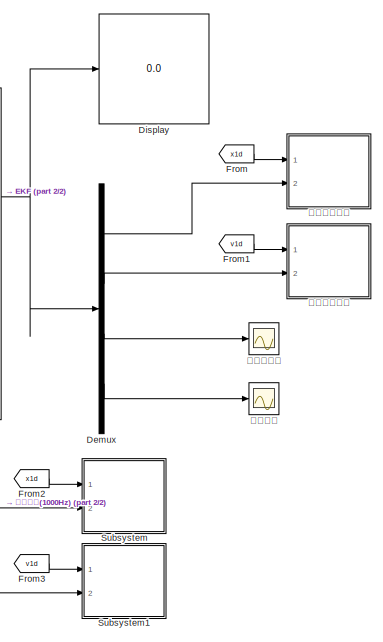
[diagram: root canvas - part 1/2, right side, full height]
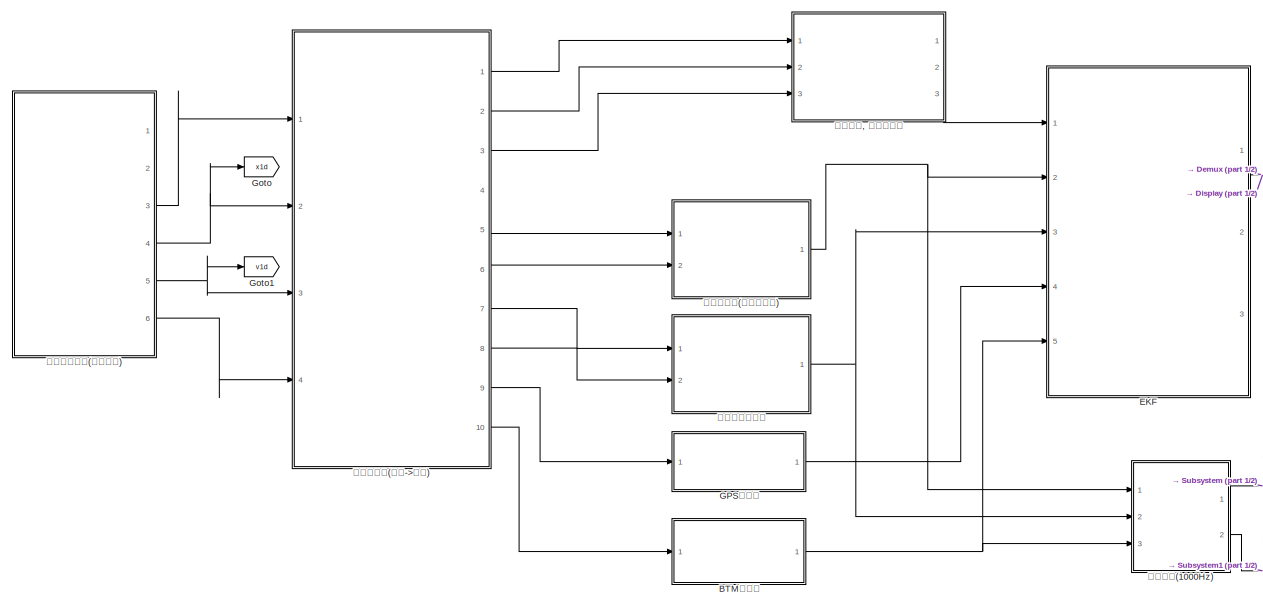
[diagram: root canvas - part 2/2, most of the canvas]
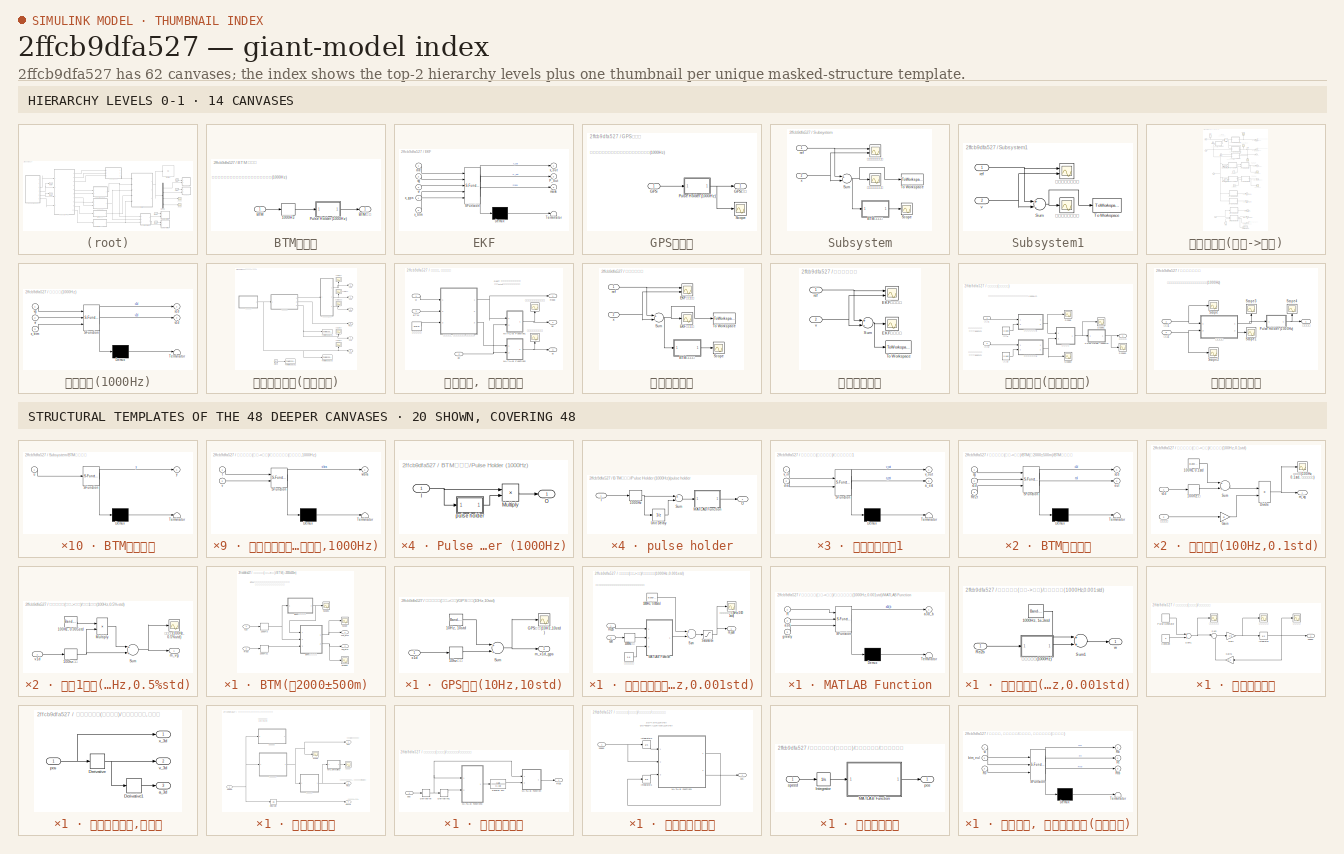
[diagram: thumbnail index - top-2 hierarchy levels (14 canvases) + 20 structural-template representatives of the remaining 48 canvases]
MODEL slx_2ffcb9dfa527
KIND model
CONFIG AbsTol = auto
CONFIG EnableMultiTasking = off
CONFIG FixedStep = 0.001
CONFIG MaxStep = 0.001
CONFIG MinStep = auto
CONFIG RelTol = 1e-3
CONFIG SampleTimeConstraint = Unconstrained
CONFIG Solver = VariableStepAuto
CONFIG SolverName = VariableStepAuto
CONFIG StartTime = 0.0
CONFIG StopTime = 900
BLOCK [SubSystem] BTM预处理
  Ports = [1, 1]
  RequestExecContextInheritance = off
BLOCK [ZeroOrderHold] BTM预处理/1000Hz
  SampleTime = 1e-3
BLOCK [Inport] BTM预处理/BTM
  IconDisplay = Port number
BLOCK [Outport] BTM预处理/BTM定位
  IconDisplay = Port number
BLOCK [SubSystem] BTM预处理/Pulse Holder (1000Hz)
  Ports = [1, 1]
  RequestExecContextInheritance = off
BLOCK [Inport] BTM预处理/Pulse Holder (1000Hz)/I
  IconDisplay = Port number
BLOCK [Product] BTM预处理/Pulse Holder (1000Hz)/Multiply
  InputSameDT = off
  OutDataTypeStr = Inherit: Inherit via internal rule
  Ports = [2, 1]
  RndMeth = Floor
  SaturateOnIntegerOverflow = off
BLOCK [Outport] BTM预处理/Pulse Holder (1000Hz)/O
  IconDisplay = Port number
BLOCK [SubSystem] BTM预处理/Pulse Holder (1000Hz)/pulse holder
  Ports = [1, 1]
  RequestExecContextInheritance = off
BLOCK [ZeroOrderHold] BTM预处理/Pulse Holder (1000Hz)/pulse holder/1000Hz
  SampleTime = 1e-3
BLOCK [Inport] BTM预处理/Pulse Holder (1000Hz)/pulse holder/I
  IconDisplay = Port number
BLOCK [SubSystem] BTM预处理/Pulse Holder (1000Hz)/pulse holder/MATLAB Function
  ErrorFcn = Stateflow.Translate.translate
  PermitHierarchicalResolution = ExplicitOnly
  Ports = [1, 1]
  RequestExecContextInheritance = off
  SFBlockType = MATLAB Function
  TreatAsAtomicUnit = on
BLOCK [Demux] BTM预处理/Pulse Holder (1000Hz)/pulse holder/MATLAB Function/ Demux 
  Outputs = 1
  Ports = [1, 1]
BLOCK [S-Function] BTM预处理/Pulse Holder (1000Hz)/pulse holder/MATLAB Function/ SFunction 
  EnableBusSupport = on
  FunctionName = sf_sfun
  PortCounts = [1 2]
  Ports = [1, 2]
  SFcnIsStateOwnerBlock = off
  SFunctionDeploymentMode = off
  Tag = Stateflow S-Function EKF 14
BLOCK [Terminator] BTM预处理/Pulse Holder (1000Hz)/pulse holder/MATLAB Function/ Terminator 
BLOCK [Inport] BTM预处理/Pulse Holder (1000Hz)/pulse holder/MATLAB Function/u
  IconDisplay = Port number
BLOCK [Outport] BTM预处理/Pulse Holder (1000Hz)/pulse holder/MATLAB Function/y
  IconDisplay = Port number
BLOCK [Outport] BTM预处理/Pulse Holder (1000Hz)/pulse holder/O
  IconDisplay = Port number
BLOCK [Sum] BTM预处理/Pulse Holder (1000Hz)/pulse holder/Sum
  InputSameDT = off
  Inputs = +-
  OutDataTypeStr = Inherit: Inherit via internal rule
  Ports = [2, 1]
  SaturateOnIntegerOverflow = off
BLOCK [UnitDelay] BTM预处理/Pulse Holder (1000Hz)/pulse holder/Unit Delay
  InputProcessing = Elements as channels (sample based)
  SampleTime = -1
BLOCK [Demux] Demux
  DisplayOption = bar
  Ports = [1, 4]
BLOCK [Display] Display
  Decimation = 1
  Ports = [1]
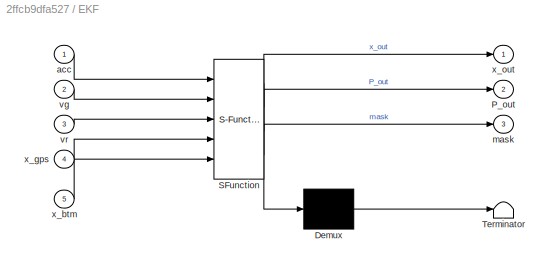
BLOCK [SubSystem] EKF
  ErrorFcn = Stateflow.Translate.translate
  PermitHierarchicalResolution = ExplicitOnly
  Ports = [5, 3]
  RequestExecContextInheritance = off
  SFBlockType = MATLAB Function
  SystemSampleTime = 1e-3
  TreatAsAtomicUnit = on
BLOCK [Demux] EKF/ Demux 
  Outputs = 1
  Ports = [1, 1]
BLOCK [S-Function] EKF/ SFunction 
  EnableBusSupport = on
  FunctionName = sf_sfun
  PortCounts = [5 4]
  Ports = [5, 4]
  SFcnIsStateOwnerBlock = off
  SFunctionDeploymentMode = off
  Tag = Stateflow S-Function EKF 6
BLOCK [Terminator] EKF/ Terminator 
BLOCK [Outport] EKF/P_out
  IconDisplay = Port number
  Port = 2
BLOCK [Inport] EKF/acc
  IconDisplay = Port number
BLOCK [Outport] EKF/mask
  IconDisplay = Port number
  Port = 3
BLOCK [Inport] EKF/vg
  IconDisplay = Port number
  Port = 2
BLOCK [Inport] EKF/vr
  IconDisplay = Port number
  Port = 3
BLOCK [Inport] EKF/x_btm
  IconDisplay = Port number
  Port = 5
BLOCK [Inport] EKF/x_gps
  IconDisplay = Port number
  Port = 4
BLOCK [Outport] EKF/x_out
  IconDisplay = Port number
BLOCK [From] From
  GotoTag = x1d
BLOCK [From] From1
  GotoTag = v1d
BLOCK [From] From2
  GotoTag = x1d
BLOCK [From] From3
  GotoTag = v1d
BLOCK [SubSystem] GPS预处理
  Ports = [1, 1]
  RequestExecContextInheritance = off
BLOCK [Inport] GPS预处理/GPS
  IconDisplay = Port number
BLOCK [Outport] GPS预处理/GPS定位
  IconDisplay = Port number
BLOCK [SubSystem] GPS预处理/Pulse Holder (1000Hz)
  Ports = [1, 1]
  RequestExecContextInheritance = off
BLOCK [Inport] GPS预处理/Pulse Holder (1000Hz)/I
  IconDisplay = Port number
BLOCK [Product] GPS预处理/Pulse Holder (1000Hz)/Multiply
  InputSameDT = off
  OutDataTypeStr = Inherit: Inherit via internal rule
  Ports = [2, 1]
  RndMeth = Floor
  SaturateOnIntegerOverflow = off
BLOCK [Outport] GPS预处理/Pulse Holder (1000Hz)/O
  IconDisplay = Port number
BLOCK [SubSystem] GPS预处理/Pulse Holder (1000Hz)/pulse holder
  Ports = [1, 1]
  RequestExecContextInheritance = off
BLOCK [ZeroOrderHold] GPS预处理/Pulse Holder (1000Hz)/pulse holder/1000Hz
  SampleTime = 1e-3
BLOCK [Inport] GPS预处理/Pulse Holder (1000Hz)/pulse holder/I
  IconDisplay = Port number
BLOCK [SubSystem] GPS预处理/Pulse Holder (1000Hz)/pulse holder/MATLAB Function
  ErrorFcn = Stateflow.Translate.translate
  PermitHierarchicalResolution = ExplicitOnly
  Ports = [1, 1]
  RequestExecContextInheritance = off
  SFBlockType = MATLAB Function
  TreatAsAtomicUnit = on
BLOCK [Demux] GPS预处理/Pulse Holder (1000Hz)/pulse holder/MATLAB Function/ Demux 
  Outputs = 1
  Ports = [1, 1]
BLOCK [S-Function] GPS预处理/Pulse Holder (1000Hz)/pulse holder/MATLAB Function/ SFunction 
  EnableBusSupport = on
  FunctionName = sf_sfun
  PortCounts = [1 2]
  Ports = [1, 2]
  SFcnIsStateOwnerBlock = off
  SFunctionDeploymentMode = off
  Tag = Stateflow S-Function EKF 15
BLOCK [Terminator] GPS预处理/Pulse Holder (1000Hz)/pulse holder/MATLAB Function/ Terminator 
BLOCK [Inport] GPS预处理/Pulse Holder (1000Hz)/pulse holder/MATLAB Function/u
  IconDisplay = Port number
BLOCK [Outport] GPS预处理/Pulse Holder (1000Hz)/pulse holder/MATLAB Function/y
  IconDisplay = Port number
BLOCK [Outport] GPS预处理/Pulse Holder (1000Hz)/pulse holder/O
  IconDisplay = Port number
BLOCK [Sum] GPS预处理/Pulse Holder (1000Hz)/pulse holder/Sum
  InputSameDT = off
  Inputs = +-
  OutDataTypeStr = Inherit: Inherit via internal rule
  Ports = [2, 1]
  SaturateOnIntegerOverflow = off
BLOCK [UnitDelay] GPS预处理/Pulse Holder (1000Hz)/pulse holder/Unit Delay
  InputProcessing = Elements as channels (sample based)
  SampleTime = -1
BLOCK [Scope] GPS预处理/Scope
  Floating = off
  NumInputPorts = 1
  Ports = [1]
  ScopeSpecificationString = Simulink.scopes.TimeScopeBlockCfg('CurrentConfiguration', extmgr.ConfigurationSet(extmgr.Configuration('Core','General UI',true),extmgr.Configuration('Core','Source UI',true),extmgr.Configuration('Sources','WiredSimulink',true,'DataLoggingVariableName','ScopeData2'),extmgr.Configuration('Visuals','Time Domain',true,'SerializedDisplays',{struct('MinYLimReal','-1577.90532','MaxYLimReal','440.83396',...<+1444ch>
BLOCK [Goto] Goto
  GotoTag = x1d
BLOCK [Goto] Goto1
  GotoTag = v1d
BLOCK [SubSystem] Subsystem
  Ports = [2]
  RequestExecContextInheritance = off
BLOCK [SubSystem] Subsystem/BTM开窗失败
  ErrorFcn = Stateflow.Translate.translate
  PermitHierarchicalResolution = ExplicitOnly
  Ports = [1, 1]
  RequestExecContextInheritance = off
  SFBlockType = MATLAB Function
  TreatAsAtomicUnit = on
BLOCK [Demux] Subsystem/BTM开窗失败/ Demux 
  Outputs = 1
  Ports = [1, 1]
BLOCK [S-Function] Subsystem/BTM开窗失败/ SFunction 
  EnableBusSupport = on
  FunctionName = sf_sfun
  PortCounts = [1 2]
  Ports = [1, 2]
  SFcnIsStateOwnerBlock = off
  SFunctionDeploymentMode = off
  Tag = Stateflow S-Function EKF 23
BLOCK [Terminator] Subsystem/BTM开窗失败/ Terminator 
BLOCK [Inport] Subsystem/BTM开窗失败/u
  IconDisplay = Port number
BLOCK [Outport] Subsystem/BTM开窗失败/y
  IconDisplay = Port number
BLOCK [Scope] Subsystem/Scope
  Floating = off
  NumInputPorts = 1
  Ports = [1]
  ScopeSpecificationString = Simulink.scopes.TimeScopeBlockCfg('CurrentConfiguration', extmgr.ConfigurationSet(extmgr.Configuration('Core','General UI',true),extmgr.Configuration('Core','Source UI',true),extmgr.Configuration('Sources','WiredSimulink',true,'DataLoggingVariableName','ScopeData6'),extmgr.Configuration('Visuals','Time Domain',true,'SerializedDisplays',{struct('MinYLimReal','-0.125','MaxYLimReal','1.125','YLabelRe...<+1379ch>
BLOCK [Sum] Subsystem/Sum
  InputSameDT = off
  Inputs = +-
  OutDataTypeStr = Inherit: Inherit via internal rule
  Ports = [2, 1]
  SaturateOnIntegerOverflow = off
BLOCK [ToWorkspace] Subsystem/To Workspace
  FixptAsFi = on
  MaxDataPoints = inf
  Ports = [1]
  SampleTime = 1e-3
  Save2DSignal = 3-D array (concatenate along third dimension)
  VariableName = trad_dist_err
BLOCK [Inport] Subsystem/ref
  IconDisplay = Port number
BLOCK [Inport] Subsystem/x
  IconDisplay = Port number
  Port = 2
BLOCK [Scope] Subsystem/传统方法测距偏差
  Floating = off
  NumInputPorts = 1
  Ports = [1]
  ScopeSpecificationString = Simulink.scopes.TimeScopeBlockCfg('CurrentConfiguration', extmgr.ConfigurationSet(extmgr.Configuration('Core','General UI',true),extmgr.Configuration('Core','Source UI',true),extmgr.Configuration('Sources','WiredSimulink',true,'DataLoggingVariableName','ScopeData12'),extmgr.Configuration('Visuals','Time Domain',true,'SerializedDisplays',{struct('MinYLimReal','-7.1216','MaxYLimReal','61.54617','YLa...<+1390ch>
BLOCK [Scope] Subsystem/传统方法测距对比
  Floating = off
  NumInputPorts = 2
  Ports = [2]
  ScopeSpecificationString = Simulink.scopes.TimeScopeBlockCfg('CurrentConfiguration', extmgr.ConfigurationSet(extmgr.Configuration('Core','General UI',true),extmgr.Configuration('Core','Source UI',true),extmgr.Configuration('Sources','WiredSimulink',true,'DataLoggingVariableName','ScopeData10'),extmgr.Configuration('Visuals','Time Domain',true,'SerializedDisplays',{struct('MinYLimReal','-8750.7727','MaxYLimReal','78756.9543'...<+1431ch>
BLOCK [SubSystem] Subsystem1
  Ports = [2]
  RequestExecContextInheritance = off
BLOCK [Sum] Subsystem1/Sum
  InputSameDT = off
  Inputs = +-
  OutDataTypeStr = Inherit: Inherit via internal rule
  Ports = [2, 1]
  SaturateOnIntegerOverflow = off
BLOCK [ToWorkspace] Subsystem1/To Workspace
  FixptAsFi = on
  MaxDataPoints = inf
  Ports = [1]
  SampleTime = 1e-3
  Save2DSignal = 3-D array (concatenate along third dimension)
  VariableName = trad_speed_err
BLOCK [Inport] Subsystem1/ref
  IconDisplay = Port number
BLOCK [Inport] Subsystem1/v
  IconDisplay = Port number
  Port = 2
BLOCK [Scope] Subsystem1/传统方法测速偏差
  Floating = off
  NumInputPorts = 1
  Ports = [1]
  ScopeSpecificationString = Simulink.scopes.TimeScopeBlockCfg('CurrentConfiguration', extmgr.ConfigurationSet(extmgr.Configuration('Core','General UI',true),extmgr.Configuration('Core','Source UI',true),extmgr.Configuration('Sources','WiredSimulink',true,'DataLoggingVariableName','ScopeData12'),extmgr.Configuration('Visuals','Time Domain',true,'SerializedDisplays',{struct('MinYLimReal','-1.91878','MaxYLimReal','6.75069','YLa...<+1388ch>
BLOCK [Scope] Subsystem1/传统方法速度对比
  Floating = off
  NumInputPorts = 2
  Ports = [2]
  ScopeSpecificationString = Simulink.scopes.TimeScopeBlockCfg('CurrentConfiguration', extmgr.ConfigurationSet(extmgr.Configuration('Core','General UI',true),extmgr.Configuration('Core','Source UI',true),extmgr.Configuration('Sources','WiredSimulink',true,'DataLoggingVariableName','ScopeData10'),extmgr.Configuration('Visuals','Time Domain',true,'SerializedDisplays',{struct('MinYLimReal','-12.54422','MaxYLimReal','112.60088','...<+1421ch>
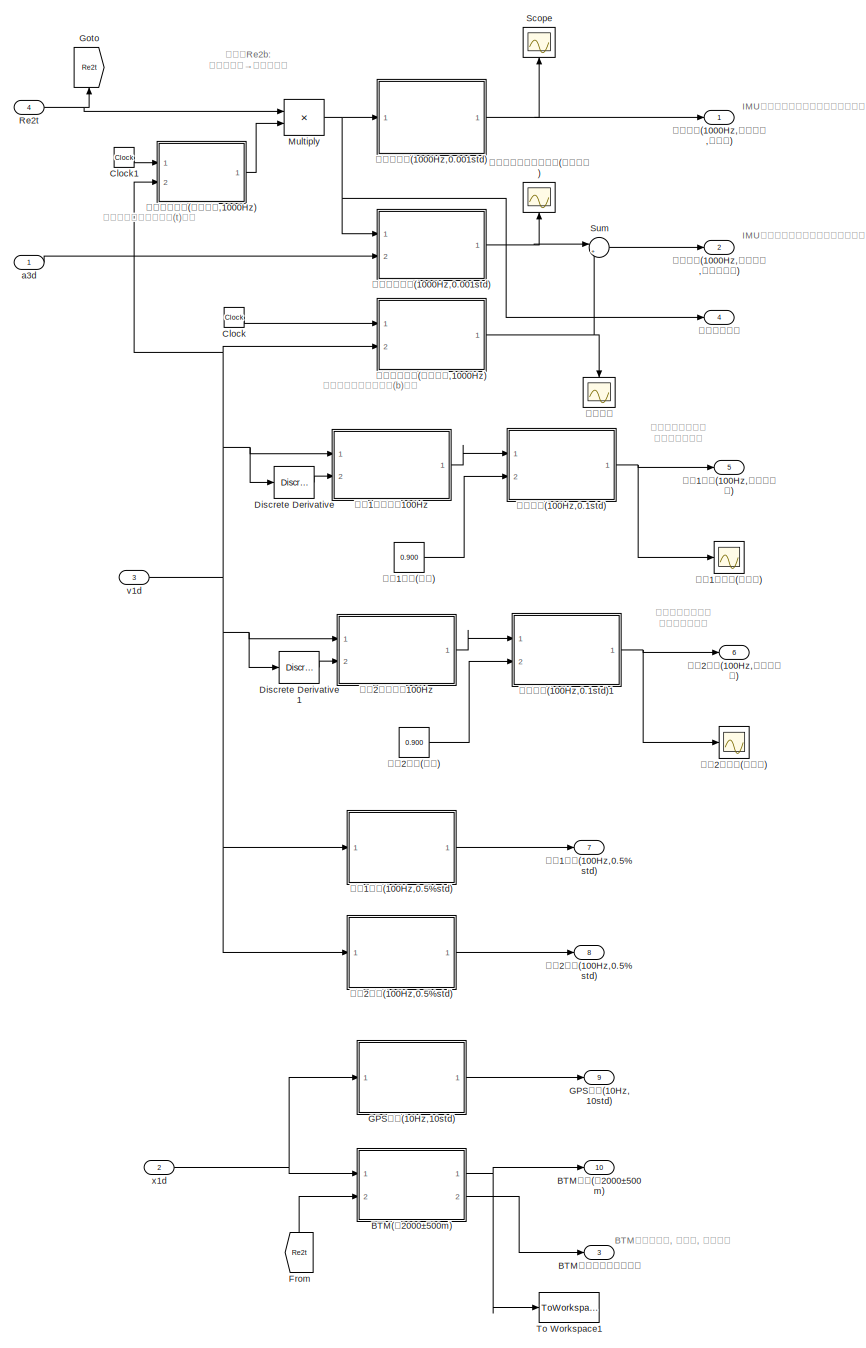
[diagram: 传感器采样(连续->离散) - part 1/1, most of the canvas]
BLOCK [SubSystem] 传感器采样(连续->离散)
  Ports = [4, 10]
  RequestExecContextInheritance = off
BLOCK [SubSystem] 传感器采样(连续->离散)/BTM(每2000±500m)
  Ports = [2, 2]
  RequestExecContextInheritance = off
BLOCK [ZeroOrderHold] 传感器采样(连续->离散)/BTM(每2000±500m)/1000Hz
  SampleTime = 1e-3
BLOCK [ZeroOrderHold] 传感器采样(连续->离散)/BTM(每2000±500m)/1000Hz1
  SampleTime = 1e-3
BLOCK [SubSystem] 传感器采样(连续->离散)/BTM(每2000±500m)/BTM分布生成
  ErrorFcn = Stateflow.Translate.translate
  PermitHierarchicalResolution = ExplicitOnly
  Ports = [1, 1]
  RequestExecContextInheritance = off
  SFBlockType = MATLAB Function
  SystemSampleTime = 1e-3
  TreatAsAtomicUnit = on
BLOCK [Demux] 传感器采样(连续->离散)/BTM(每2000±500m)/BTM分布生成/ Demux 
  Outputs = 1
  Ports = [1, 1]
BLOCK [S-Function] 传感器采样(连续->离散)/BTM(每2000±500m)/BTM分布生成/ SFunction 
  EnableBusSupport = on
  FunctionName = sf_sfun
  PortCounts = [1 2]
  Ports = [1, 2]
  SFcnIsStateOwnerBlock = off
  SFunctionDeploymentMode = off
  Tag = Stateflow S-Function EKF 26
BLOCK [Terminator] 传感器采样(连续->离散)/BTM(每2000±500m)/BTM分布生成/ Terminator 
BLOCK [Outport] 传感器采样(连续->离散)/BTM(每2000±500m)/BTM分布生成/pulse
  IconDisplay = Port number
BLOCK [Inport] 传感器采样(连续->离散)/BTM(每2000±500m)/BTM分布生成/x1d
  IconDisplay = Port number
BLOCK [SubSystem] 传感器采样(连续->离散)/BTM(每2000±500m)/BTM数据生成
  ErrorFcn = Stateflow.Translate.translate
  PermitHierarchicalResolution = ExplicitOnly
  Ports = [3, 2]
  RequestExecContextInheritance = off
  SFBlockType = MATLAB Function
  SystemSampleTime = 1e-3
  TreatAsAtomicUnit = on
BLOCK [Demux] 传感器采样(连续->离散)/BTM(每2000±500m)/BTM数据生成/ Demux 
  Outputs = 1
  Ports = [1, 1]
BLOCK [S-Function] 传感器采样(连续->离散)/BTM(每2000±500m)/BTM数据生成/ SFunction 
  EnableBusSupport = on
  FunctionName = sf_sfun
  PortCounts = [3 3]
  Ports = [3, 3]
  SFcnIsStateOwnerBlock = off
  SFunctionDeploymentMode = off
  Tag = Stateflow S-Function EKF 3
BLOCK [Terminator] 传感器采样(连续->离散)/BTM(每2000±500m)/BTM数据生成/ Terminator 
BLOCK [Inport] 传感器采样(连续->离散)/BTM(每2000±500m)/BTM数据生成/Re2t
  IconDisplay = Port number
  Port = 3
BLOCK [Outport] 传感器采样(连续->离散)/BTM(每2000±500m)/BTM数据生成/eul
  IconDisplay = Port number
  Port = 2
BLOCK [Inport] 传感器采样(连续->离散)/BTM(每2000±500m)/BTM数据生成/sg
  IconDisplay = Port number
BLOCK [Outport] 传感器采样(连续->离散)/BTM(每2000±500m)/BTM数据生成/x1d
  IconDisplay = Port number
BLOCK [Inport] 传感器采样(连续->离散)/BTM(每2000±500m)/BTM数据生成/x1d 
  IconDisplay = Port number
  Port = 2
BLOCK [Inport] 传感器采样(连续->离散)/BTM(每2000±500m)/Re2t
  IconDisplay = Port number
  Port = 2
BLOCK [Scope] 传感器采样(连续->离散)/BTM(每2000±500m)/Scope
  Floating = off
  NumInputPorts = 1
  Ports = [1]
  ScopeSpecificationString = Simulink.scopes.TimeScopeBlockCfg('CurrentConfiguration', extmgr.ConfigurationSet(extmgr.Configuration('Core','General UI',true),extmgr.Configuration('Core','Source UI',true),extmgr.Configuration('Sources','WiredSimulink',true,'DataLoggingVariableName','ScopeData8'),extmgr.Configuration('Visuals','Time Domain',true,'SerializedDisplays',{struct('MinYLimReal','-8662.6274','MaxYLimReal','77963.64661'...<+1462ch>
BLOCK [Scope] 传感器采样(连续->离散)/BTM(每2000±500m)/Scope1
  Floating = off
  NumInputPorts = 1
  Ports = [1]
  ScopeSpecificationString = Simulink.scopes.TimeScopeBlockCfg('CurrentConfiguration', extmgr.ConfigurationSet(extmgr.Configuration('Core','General UI',true),extmgr.Configuration('Core','Source UI',true),extmgr.Configuration('Sources','WiredSimulink',true,'DataLoggingVariableName','ScopeData9'),extmgr.Configuration('Visuals','Time Domain',true,'SerializedDisplays',{struct('MinYLimReal','-0.01889','MaxYLimReal','1.08703','YLab...<+1465ch>
BLOCK [Scope] 传感器采样(连续->离散)/BTM(每2000±500m)/Scope2
  Floating = off
  NumInputPorts = 1
  Ports = [1]
  ScopeSpecificationString = Simulink.scopes.TimeScopeBlockCfg('CurrentConfiguration', extmgr.ConfigurationSet(extmgr.Configuration('Core','General UI',true),extmgr.Configuration('Core','Source UI',true),extmgr.Configuration('Sources','WiredSimulink',true,'DataLoggingVariableName','ScopeData10'),extmgr.Configuration('Visuals','Time Domain',true,'SerializedDisplays',{struct('MinYLimReal','-3.15953','MaxYLimReal','0.24967','YLa...<+1424ch>
BLOCK [Outport] 传感器采样(连续->离散)/BTM(每2000±500m)/eul_btm
  IconDisplay = Port number
  Port = 2
BLOCK [Inport] 传感器采样(连续->离散)/BTM(每2000±500m)/x1d
  IconDisplay = Port number
BLOCK [Outport] 传感器采样(连续->离散)/BTM(每2000±500m)/x1d_btm
  IconDisplay = Port number
BLOCK [Outport] 传感器采样(连续->离散)/BTM定位(每2000±500m)
  IconDisplay = Port number
  Port = 10
BLOCK [Outport] 传感器采样(连续->离散)/BTM矫正轨道坐标系姿态
  IconDisplay = Port number
  Port = 3
BLOCK [Clock] 传感器采样(连续->离散)/Clock
BLOCK [Clock] 传感器采样(连续->离散)/Clock1
BLOCK [Reference] 传感器采样(连续->离散)/Discrete Derivative  REF=simulink/Discrete/Discrete Derivative
  Ports = [1, 1]
  SourceBlock = simulink/Discrete/Discrete Derivative
  SourceProductBaseCode = SL
  SourceProductName = Simulink
  SourceType = Discrete Derivative
BLOCK [Reference] 传感器采样(连续->离散)/Discrete Derivative1  REF=simulink/Discrete/Discrete Derivative
  Ports = [1, 1]
  SourceBlock = simulink/Discrete/Discrete Derivative
  SourceProductBaseCode = SL
  SourceProductName = Simulink
  SourceType = Discrete Derivative
BLOCK [From] 传感器采样(连续->离散)/From
  GotoTag = Re2t
BLOCK [Outport] 传感器采样(连续->离散)/GPS定位(10Hz, 10std)
  IconDisplay = Port number
  Port = 9
BLOCK [SubSystem] 传感器采样(连续->离散)/GPS采样(10Hz,10std)
  Ports = [1, 1]
  RequestExecContextInheritance = off
BLOCK [Reference] 传感器采样(连续->离散)/GPS采样(10Hz,10std)/10Hz, 10std  REF=simulink/Sources/Band-Limited
White Noise
  Ports = [0, 1]
  SourceBlock = simulink/Sources/Band-Limited\nWhite Noise
  SourceProductBaseCode = SL
  SourceProductName = Simulink
  SourceType = Band-Limited White Noise.
BLOCK [ZeroOrderHold] 传感器采样(连续->离散)/GPS采样(10Hz,10std)/10hz采样
  SampleTime = 1e-1
BLOCK [Scope] 传感器采样(连续->离散)/GPS采样(10Hz,10std)/GPS定位(10Hz,10std)
  Floating = off
  NumInputPorts = 1
  Ports = [1]
  ScopeSpecificationString = Simulink.scopes.TimeScopeBlockCfg('CurrentConfiguration', extmgr.ConfigurationSet(extmgr.Configuration('Core','General UI',true),extmgr.Configuration('Core','Source UI',true),extmgr.Configuration('Sources','WiredSimulink',true,'DataLoggingVariableName','ScopeData11'),extmgr.Configuration('Visuals','Time Domain',true,'SerializedDisplays',{struct('MinYLimReal','-10647.9225','MaxYLimReal','95641.3050...<+1435ch>
BLOCK [Sum] 传感器采样(连续->离散)/GPS采样(10Hz,10std)/Sum
  InputSameDT = off
  OutDataTypeStr = Inherit: Inherit via internal rule
  Ports = [2, 1]
  SaturateOnIntegerOverflow = off
BLOCK [Outport] 传感器采样(连续->离散)/GPS采样(10Hz,10std)/m_x1d_gps
  IconDisplay = Port number
BLOCK [Inport] 传感器采样(连续->离散)/GPS采样(10Hz,10std)/x1d
  IconDisplay = Port number
BLOCK [Goto] 传感器采样(连续->离散)/Goto
  GotoTag = Re2t
BLOCK [Product] 传感器采样(连续->离散)/Multiply
  InputSameDT = off
  Multiplication = Matrix(*)
  OutDataTypeStr = Inherit: Inherit via internal rule
  Ports = [2, 1]
  RndMeth = Floor
  SaturateOnIntegerOverflow = off
BLOCK [Inport] 传感器采样(连续->离散)/Re2t
  IconDisplay = Port number
  Port = 4
BLOCK [Scope] 传感器采样(连续->离散)/Scope
  Floating = off
  NumInputPorts = 1
  Ports = [1]
  ScopeSpecificationString = Simulink.scopes.TimeScopeBlockCfg('CurrentConfiguration', extmgr.ConfigurationSet(extmgr.Configuration('Core','General UI',true),extmgr.Configuration('Core','Source UI',true),extmgr.Configuration('Sources','WiredSimulink',true,'DataLoggingVariableName','ScopeData1'),extmgr.Configuration('Visuals','Time Domain',true,'SerializedDisplays',{struct('MinYLimReal','-0.19709','MaxYLimReal','0.26422','YLab...<+1524ch>
BLOCK [Sum] 传感器采样(连续->离散)/Sum
  IconShape = round
  InputSameDT = off
  Inputs = |++
  OutDataTypeStr = Inherit: Inherit via internal rule
  Ports = [2, 1]
  SaturateOnIntegerOverflow = off
BLOCK [ToWorkspace] 传感器采样(连续->离散)/To Workspace1
  FixptAsFi = on
  MaxDataPoints = inf
  Ports = [1]
  SampleTime = 1e-3
  Save2DSignal = 3-D array (concatenate along third dimension)
  VariableName = btm
BLOCK [Inport] 传感器采样(连续->离散)/a3d
  IconDisplay = Port number
BLOCK [Inport] 传感器采样(连续->离散)/v1d
  IconDisplay = Port number
  Port = 3
BLOCK [Inport] 传感器采样(连续->离散)/x1d
  IconDisplay = Port number
  Port = 2
BLOCK [SubSystem] 传感器采样(连续->离散)/列车振动模型(体坐标系,1000Hz)
  ErrorFcn = Stateflow.Translate.translate
  PermitHierarchicalResolution = ExplicitOnly
  Ports = [2, 1]
  RequestExecContextInheritance = off
  SFBlockType = MATLAB Function
  SystemSampleTime = 1e-3
  TreatAsAtomicUnit = on
BLOCK [Demux] 传感器采样(连续->离散)/列车振动模型(体坐标系,1000Hz)/ Demux 
  Outputs = 1
  Ports = [1, 1]
BLOCK [S-Function] 传感器采样(连续->离散)/列车振动模型(体坐标系,1000Hz)/ SFunction 
  EnableBusSupport = on
  FunctionName = sf_sfun
  PortCounts = [2 2]
  Ports = [2, 2]
  SFcnIsStateOwnerBlock = off
  SFunctionDeploymentMode = off
  Tag = Stateflow S-Function EKF 5
BLOCK [Terminator] 传感器采样(连续->离散)/列车振动模型(体坐标系,1000Hz)/ Terminator 
BLOCK [Inport] 传感器采样(连续->离散)/列车振动模型(体坐标系,1000Hz)/t
  IconDisplay = Port number
BLOCK [Inport] 传感器采样(连续->离散)/列车振动模型(体坐标系,1000Hz)/v
  IconDisplay = Port number
  Port = 2
BLOCK [Outport] 传感器采样(连续->离散)/列车振动模型(体坐标系,1000Hz)/vibra
  IconDisplay = Port number
BLOCK [SubSystem] 传感器采样(连续->离散)/列车晃动模型(体坐标系,1000Hz)
  ErrorFcn = Stateflow.Translate.translate
  PermitHierarchicalResolution = ExplicitOnly
  Ports = [2, 1]
  RequestExecContextInheritance = off
  SFBlockType = MATLAB Function
  SystemSampleTime = 1e-3
  TreatAsAtomicUnit = on
BLOCK [Demux] 传感器采样(连续->离散)/列车晃动模型(体坐标系,1000Hz)/ Demux 
  Outputs = 1
  Ports = [1, 1]
BLOCK [S-Function] 传感器采样(连续->离散)/列车晃动模型(体坐标系,1000Hz)/ SFunction 
  EnableBusSupport = on
  FunctionName = sf_sfun
  PortCounts = [2 2]
  Ports = [2, 2]
  SFcnIsStateOwnerBlock = off
  SFunctionDeploymentMode = off
  Tag = Stateflow S-Function EKF 1
BLOCK [Terminator] 传感器采样(连续->离散)/列车晃动模型(体坐标系,1000Hz)/ Terminator 
BLOCK [Outport] 传感器采样(连续->离散)/列车晃动模型(体坐标系,1000Hz)/R_noise
  IconDisplay = Port number
BLOCK [Inport] 传感器采样(连续->离散)/列车晃动模型(体坐标系,1000Hz)/t
  IconDisplay = Port number
BLOCK [Inport] 传感器采样(连续->离散)/列车晃动模型(体坐标系,1000Hz)/v
  IconDisplay = Port number
  Port = 2
BLOCK [Outport] 传感器采样(连续->离散)/加速度计(1000Hz,体坐标系,含晃动🐍行)
  IconDisplay = Port number
  Port = 2
BLOCK [SubSystem] 传感器采样(连续->离散)/加速度计采样(1000Hz,0.001std)
  Ports = [2, 1]
  RequestExecContextInheritance = off
BLOCK [Reference] 传感器采样(连续->离散)/加速度计采样(1000Hz,0.001std)/1000Hz, 0.001std  REF=simulink/Sources/Band-Limited
White Noise
  Ports = [0, 1]
  SourceBlock = simulink/Sources/Band-Limited\nWhite Noise
  SourceProductBaseCode = SL
  SourceProductName = Simulink
  SourceType = Band-Limited White Noise.
BLOCK [ZeroOrderHold] 传感器采样(连续->离散)/加速度计采样(1000Hz,0.001std)/1000hz采样
  SampleTime = 1e-3
BLOCK [SubSystem] 传感器采样(连续->离散)/加速度计采样(1000Hz,0.001std)/MATLAB Function
  ErrorFcn = Stateflow.Translate.translate
  PermitHierarchicalResolution = ExplicitOnly
  Ports = [3, 1]
  RequestExecContextInheritance = off
  SFBlockType = MATLAB Function
  TreatAsAtomicUnit = on
BLOCK [Demux] 传感器采样(连续->离散)/加速度计采样(1000Hz,0.001std)/MATLAB Function/ Demux 
  Outputs = 1
  Ports = [1, 1]
BLOCK [S-Function] 传感器采样(连续->离散)/加速度计采样(1000Hz,0.001std)/MATLAB Function/ SFunction 
  EnableBusSupport = on
  FunctionName = sf_sfun
  PortCounts = [3 2]
  Ports = [3, 2]
  SFcnIsStateOwnerBlock = off
  SFunctionDeploymentMode = off
  Tag = Stateflow S-Function EKF 2
BLOCK [Terminator] 传感器采样(连续->离散)/加速度计采样(1000Hz,0.001std)/MATLAB Function/ Terminator 
BLOCK [Inport] 传感器采样(连续->离散)/加速度计采样(1000Hz,0.001std)/MATLAB Function/R
  IconDisplay = Port number
BLOCK [Inport] 传感器采样(连续->离散)/加速度计采样(1000Hz,0.001std)/MATLAB Function/a3d
  IconDisplay = Port number
  Port = 2
BLOCK [Outport] 传感器采样(连续->离散)/加速度计采样(1000Hz,0.001std)/MATLAB Function/a3d_b
  IconDisplay = Port number
BLOCK [Inport] 传感器采样(连续->离散)/加速度计采样(1000Hz,0.001std)/MATLAB Function/gravity
  IconDisplay = Port number
  Port = 3
BLOCK [Inport] 传感器采样(连续->离散)/加速度计采样(1000Hz,0.001std)/Re2b
  IconDisplay = Port number
BLOCK [Saturate] 传感器采样(连续->离散)/加速度计采样(1000Hz,0.001std)/Saturation
  InputPortMap = u0
  LowerLimit = -100
  Ports = [1, 1]
  UpperLimit = 100
BLOCK [Sum] 传感器采样(连续->离散)/加速度计采样(1000Hz,0.001std)/Sum
  InputSameDT = off
  OutDataTypeStr = Inherit: Inherit via internal rule
  Ports = [2, 1]
  SaturateOnIntegerOverflow = off
BLOCK [Inport] 传感器采样(连续->离散)/加速度计采样(1000Hz,0.001std)/a3d
  IconDisplay = Port number
  Port = 2
BLOCK [Outport] 传感器采样(连续->离散)/加速度计采样(1000Hz,0.001std)/m_a3d
  IconDisplay = Port number
BLOCK [Scope] 传感器采样(连续->离散)/加速度计采样(1000Hz,0.001std)/加速度计采样(1kHz,0.001std)
  Floating = off
  NumInputPorts = 1
  Ports = [1]
  ScopeSpecificationString = Simulink.scopes.TimeScopeBlockCfg('CurrentConfiguration', extmgr.ConfigurationSet(extmgr.Configuration('Core','General UI',true),extmgr.Configuration('Core','Source UI',true),extmgr.Configuration('Sources','WiredSimulink',true,'DataLoggingVariableName','ScopeData10'),extmgr.Configuration('Visuals','Time Domain',true,'SerializedDisplays',{struct('MinYLimReal','-1.41221','MaxYLimReal','2.67596','YLa...<+1425ch>
BLOCK [Constant] 传感器采样(连续->离散)/加速度计采样(1000Hz,0.001std)/重力加速度
  Value = 9.8
BLOCK [Scope] 传感器采样(连续->离散)/振动模态
  Floating = off
  NumInputPorts = 1
  Ports = [1]
  ScopeSpecificationString = Simulink.scopes.TimeScopeBlockCfg('CurrentConfiguration', extmgr.ConfigurationSet(extmgr.Configuration('Core','General UI',true),extmgr.Configuration('Core','Source UI',true),extmgr.Configuration('Sources','WiredSimulink',true,'DataLoggingVariableName','ScopeData15'),extmgr.Configuration('Visuals','Time Domain',true,'SerializedDisplays',{struct('MinYLimReal','-1.55037','MaxYLimReal','2.18813','YLa...<+1434ch>
BLOCK [Outport] 传感器采样(连续->离散)/角速度计(1000Hz,体坐标系,含扰动)
  IconDisplay = Port number
BLOCK [SubSystem] 传感器采样(连续->离散)/角速度采样(1000Hz,0.001std)
  Ports = [1, 1]
  RequestExecContextInheritance = off
BLOCK [Reference] 传感器采样(连续->离散)/角速度采样(1000Hz,0.001std)/1000Hz, 1e-3std  REF=simulink/Sources/Band-Limited
White Noise
  Ports = [0, 1]
  SourceBlock = simulink/Sources/Band-Limited\nWhite Noise
  SourceProductBaseCode = SL
  SourceProductName = Simulink
  SourceType = Band-Limited White Noise.
BLOCK [Inport] 传感器采样(连续->离散)/角速度采样(1000Hz,0.001std)/Re2b
  IconDisplay = Port number
BLOCK [Sum] 传感器采样(连续->离散)/角速度采样(1000Hz,0.001std)/Sum1
  InputSameDT = off
  OutDataTypeStr = Inherit: Inherit via internal rule
  Ports = [2, 1]
  SaturateOnIntegerOverflow = off
BLOCK [Outport] 传感器采样(连续->离散)/角速度采样(1000Hz,0.001std)/w
  IconDisplay = Port number
BLOCK [SubSystem] 传感器采样(连续->离散)/角速度采样(1000Hz,0.001std)/角速度采样(1000Hz)
  ErrorFcn = Stateflow.Translate.translate
  PermitHierarchicalResolution = ExplicitOnly
  Ports = [1, 1]
  RequestExecContextInheritance = off
  SFBlockType = MATLAB Function
  SystemSampleTime = 1e-3
  TreatAsAtomicUnit = on
BLOCK [Demux] 传感器采样(连续->离散)/角速度采样(1000Hz,0.001std)/角速度采样(1000Hz)/ Demux 
  Outputs = 1
  Ports = [1, 1]
BLOCK [S-Function] 传感器采样(连续->离散)/角速度采样(1000Hz,0.001std)/角速度采样(1000Hz)/ SFunction 
  EnableBusSupport = on
  FunctionName = sf_sfun
  PortCounts = [1 2]
  Ports = [1, 2]
  SFcnIsStateOwnerBlock = off
  SFunctionDeploymentMode = off
  Tag = Stateflow S-Function EKF 4
BLOCK [Terminator] 传感器采样(连续->离散)/角速度采样(1000Hz,0.001std)/角速度采样(1000Hz)/ Terminator 
BLOCK [Inport] 传感器采样(连续->离散)/角速度采样(1000Hz,0.001std)/角速度采样(1000Hz)/R
  IconDisplay = Port number
BLOCK [Outport] 传感器采样(连续->离散)/角速度采样(1000Hz,0.001std)/角速度采样(1000Hz)/w
  IconDisplay = Port number
BLOCK [Outport] 传感器采样(连续->离散)/车体坐标姿态
  IconDisplay = Port number
  Port = 4
BLOCK [Scope] 传感器采样(连续->离散)/车体坐标系测得加速度(不含振动)
  Floating = off
  NumInputPorts = 1
  Ports = [1]
  ScopeSpecificationString = Simulink.scopes.TimeScopeBlockCfg('CurrentConfiguration', extmgr.ConfigurationSet(extmgr.Configuration('Core','General UI',true),extmgr.Configuration('Core','Source UI',true),extmgr.Configuration('Sources','WiredSimulink',true,'DataLoggingVariableName','ScopeData16'),extmgr.Configuration('Visuals','Time Domain',true,'SerializedDisplays',{struct('MinYLimReal','-11.64702','MaxYLimReal','3.29465','YL...<+1544ch>
BLOCK [SubSystem] 传感器采样(连续->离散)/车轮1打滑模型100Hz
  ErrorFcn = Stateflow.Translate.translate
  PermitHierarchicalResolution = ExplicitOnly
  Ports = [2, 1]
  RequestExecContextInheritance = off
  SFBlockType = MATLAB Function
  SystemSampleTime = 1e-2
  TreatAsAtomicUnit = on
BLOCK [Demux] 传感器采样(连续->离散)/车轮1打滑模型100Hz/ Demux 
  Outputs = 1
  Ports = [1, 1]
BLOCK [S-Function] 传感器采样(连续->离散)/车轮1打滑模型100Hz/ SFunction 
  EnableBusSupport = on
  FunctionName = sf_sfun
  PortCounts = [2 2]
  Ports = [2, 2]
  SFcnIsStateOwnerBlock = off
  SFunctionDeploymentMode = off
  Tag = Stateflow S-Function EKF 7
BLOCK [Terminator] 传感器采样(连续->离散)/车轮1打滑模型100Hz/ Terminator 
BLOCK [Inport] 传感器采样(连续->离散)/车轮1打滑模型100Hz/a_true
  IconDisplay = Port number
  Port = 2
BLOCK [Inport] 传感器采样(连续->离散)/车轮1打滑模型100Hz/v_true
  IconDisplay = Port number
BLOCK [Outport] 传感器采样(连续->离散)/车轮1打滑模型100Hz/v_wheel
  IconDisplay = Port number
BLOCK [SubSystem] 传感器采样(连续->离散)/车轮2打滑模型100Hz
  ErrorFcn = Stateflow.Translate.translate
  PermitHierarchicalResolution = ExplicitOnly
  Ports = [2, 1]
  RequestExecContextInheritance = off
  SFBlockType = MATLAB Function
  SystemSampleTime = 1e-2
  TreatAsAtomicUnit = on
BLOCK [Demux] 传感器采样(连续->离散)/车轮2打滑模型100Hz/ Demux 
  Outputs = 1
  Ports = [1, 1]
BLOCK [S-Function] 传感器采样(连续->离散)/车轮2打滑模型100Hz/ SFunction 
  EnableBusSupport = on
  FunctionName = sf_sfun
  PortCounts = [2 2]
  Ports = [2, 2]
  SFcnIsStateOwnerBlock = off
  SFunctionDeploymentMode = off
  Tag = Stateflow S-Function EKF 16
BLOCK [Terminator] 传感器采样(连续->离散)/车轮2打滑模型100Hz/ Terminator 
BLOCK [Inport] 传感器采样(连续->离散)/车轮2打滑模型100Hz/a_true
  IconDisplay = Port number
  Port = 2
BLOCK [Inport] 传感器采样(连续->离散)/车轮2打滑模型100Hz/v_true
  IconDisplay = Port number
BLOCK [Outport] 传感器采样(连续->离散)/车轮2打滑模型100Hz/v_wheel
  IconDisplay = Port number
BLOCK [Constant] 传感器采样(连续->离散)/轮径1设定(直径)
  Value = 0.900
BLOCK [Constant] 传感器采样(连续->离散)/轮径2设定(直径)
  Value = 0.900
BLOCK [Outport] 传感器采样(连续->离散)/轮轴1测速(100Hz,含打滑空转)
  IconDisplay = Port number
  Port = 5
BLOCK [Scope] 传感器采样(连续->离散)/轮轴1角脉冲(含打滑)
  Floating = off
  NumInputPorts = 1
  Ports = [1]
  ScopeSpecificationString = Simulink.scopes.TimeScopeBlockCfg('CurrentConfiguration', extmgr.ConfigurationSet(extmgr.Configuration('Core','General UI',true),extmgr.Configuration('Core','Source UI',true),extmgr.Configuration('Sources','WiredSimulink',true,'DataLoggingVariableName','ScopeData13'),extmgr.Configuration('Visuals','Time Domain',true,'SerializedDisplays',{struct('MinYLimReal','18.97466','MaxYLimReal','24.26795','YL...<+1483ch>
BLOCK [Outport] 传感器采样(连续->离散)/轮轴2测速(100Hz,含打滑空转)
  IconDisplay = Port number
  Port = 6
BLOCK [Scope] 传感器采样(连续->离散)/轮轴2角脉冲(含打滑)
  Floating = off
  NumInputPorts = 1
  Ports = [1]
  ScopeSpecificationString = Simulink.scopes.TimeScopeBlockCfg('CurrentConfiguration', extmgr.ConfigurationSet(extmgr.Configuration('Core','General UI',true),extmgr.Configuration('Core','Source UI',true),extmgr.Configuration('Sources','WiredSimulink',true,'DataLoggingVariableName','ScopeData1'),extmgr.Configuration('Visuals','Time Domain',true,'SerializedDisplays',{struct('MinYLimReal','-4.44948','MaxYLimReal','39.88355','YLa...<+1481ch>
BLOCK [SubSystem] 传感器采样(连续->离散)/速传采样(100Hz,0.1std)
  Ports = [2, 1]
  RequestExecContextInheritance = off
BLOCK [Reference] 传感器采样(连续->离散)/速传采样(100Hz,0.1std)/100Hz, 0.1std  REF=simulink/Sources/Band-Limited
White Noise
  Ports = [0, 1]
  SourceBlock = simulink/Sources/Band-Limited\nWhite Noise
  SourceProductBaseCode = SL
  SourceProductName = Simulink
  SourceType = Band-Limited White Noise.
BLOCK [ZeroOrderHold] 传感器采样(连续->离散)/速传采样(100Hz,0.1std)/100hz采样
  SampleTime = 1e-2
BLOCK [Product] 传感器采样(连续->离散)/速传采样(100Hz,0.1std)/Divide
  InputSameDT = off
  Inputs = */
  OutDataTypeStr = Inherit: Inherit via internal rule
  Ports = [2, 1]
  RndMeth = Floor
  SaturateOnIntegerOverflow = off
BLOCK [Gain] 传感器采样(连续->离散)/速传采样(100Hz,0.1std)/Gain
  Gain = pi
  OutDataTypeStr = Inherit: Inherit via internal rule
  ParamDataTypeStr = Inherit: Inherit via internal rule
  SaturateOnIntegerOverflow = off
BLOCK [Sum] 传感器采样(连续->离散)/速传采样(100Hz,0.1std)/Sum
  InputSameDT = off
  OutDataTypeStr = Inherit: Inherit via internal rule
  Ports = [2, 1]
  SaturateOnIntegerOverflow = off
BLOCK [Outport] 传感器采样(连续->离散)/速传采样(100Hz,0.1std)/m_vg
  IconDisplay = Port number
BLOCK [Inport] 传感器采样(连续->离散)/速传采样(100Hz,0.1std)/v1d
  IconDisplay = Port number
BLOCK [Inport] 传感器采样(连续->离散)/速传采样(100Hz,0.1std)/轮径设定
  IconDisplay = Port number
  Port = 2
BLOCK [Scope] 传感器采样(连续->离散)/速传采样(100Hz,0.1std)/速传采样(100Hz, 0.1std, 转化为角速度)
  Floating = off
  NumInputPorts = 1
  Ports = [1]
  ScopeSpecificationString = Simulink.scopes.TimeScopeBlockCfg('CurrentConfiguration', extmgr.ConfigurationSet(extmgr.Configuration('Core','General UI',true),extmgr.Configuration('Core','Source UI',true),extmgr.Configuration('Sources','WiredSimulink',true,'DataLoggingVariableName','ScopeData9'),extmgr.Configuration('Visuals','Time Domain',true,'SerializedDisplays',{struct('MinYLimReal','-4.45243','MaxYLimReal','39.91009','YLa...<+1413ch>
BLOCK [SubSystem] 传感器采样(连续->离散)/速传采样(100Hz,0.1std)1
  Ports = [2, 1]
  RequestExecContextInheritance = off
BLOCK [Reference] 传感器采样(连续->离散)/速传采样(100Hz,0.1std)1/100Hz, 0.1std  REF=simulink/Sources/Band-Limited
White Noise
  Ports = [0, 1]
  SourceBlock = simulink/Sources/Band-Limited\nWhite Noise
  SourceProductBaseCode = SL
  SourceProductName = Simulink
  SourceType = Band-Limited White Noise.
BLOCK [ZeroOrderHold] 传感器采样(连续->离散)/速传采样(100Hz,0.1std)1/100hz采样
  SampleTime = 1e-2
BLOCK [Product] 传感器采样(连续->离散)/速传采样(100Hz,0.1std)1/Divide
  InputSameDT = off
  Inputs = */
  OutDataTypeStr = Inherit: Inherit via internal rule
  Ports = [2, 1]
  RndMeth = Floor
  SaturateOnIntegerOverflow = off
BLOCK [Gain] 传感器采样(连续->离散)/速传采样(100Hz,0.1std)1/Gain
  Gain = pi
  OutDataTypeStr = Inherit: Inherit via internal rule
  ParamDataTypeStr = Inherit: Inherit via internal rule
  SaturateOnIntegerOverflow = off
BLOCK [Sum] 传感器采样(连续->离散)/速传采样(100Hz,0.1std)1/Sum
  InputSameDT = off
  OutDataTypeStr = Inherit: Inherit via internal rule
  Ports = [2, 1]
  SaturateOnIntegerOverflow = off
BLOCK [Outport] 传感器采样(连续->离散)/速传采样(100Hz,0.1std)1/m_vg
  IconDisplay = Port number
BLOCK [Inport] 传感器采样(连续->离散)/速传采样(100Hz,0.1std)1/v1d
  IconDisplay = Port number
BLOCK [Inport] 传感器采样(连续->离散)/速传采样(100Hz,0.1std)1/轮径设定
  IconDisplay = Port number
  Port = 2
BLOCK [Scope] 传感器采样(连续->离散)/速传采样(100Hz,0.1std)1/速传采样(100Hz, 0.1std, 转化为角速度)
  Floating = off
  NumInputPorts = 1
  Ports = [1]
  ScopeSpecificationString = Simulink.scopes.TimeScopeBlockCfg('CurrentConfiguration', extmgr.ConfigurationSet(extmgr.Configuration('Core','General UI',true),extmgr.Configuration('Core','Source UI',true),extmgr.Configuration('Sources','WiredSimulink',true,'DataLoggingVariableName','ScopeData9'),extmgr.Configuration('Visuals','Time Domain',true,'SerializedDisplays',{struct('MinYLimReal','-4.45243','MaxYLimReal','39.91009','YLa...<+1413ch>
BLOCK [Outport] 传感器采样(连续->离散)/雷达1测速(100Hz,0.5%std)
  IconDisplay = Port number
  Port = 7
BLOCK [SubSystem] 传感器采样(连续->离散)/雷达1采样(100Hz,0.5%std)
  Ports = [1, 1]
  RequestExecContextInheritance = off
BLOCK [Reference] 传感器采样(连续->离散)/雷达1采样(100Hz,0.5%std)/100Hz, 0.005std  REF=simulink/Sources/Band-Limited
White Noise
  Ports = [0, 1]
  SourceBlock = simulink/Sources/Band-Limited\nWhite Noise
  SourceProductBaseCode = SL
  SourceProductName = Simulink
  SourceType = Band-Limited White Noise.
BLOCK [ZeroOrderHold] 传感器采样(连续->离散)/雷达1采样(100Hz,0.5%std)/100hz采样
  SampleTime = 1e-2
BLOCK [Product] 传感器采样(连续->离散)/雷达1采样(100Hz,0.5%std)/Multiply
  InputSameDT = off
  OutDataTypeStr = Inherit: Inherit via internal rule
  Ports = [2, 1]
  RndMeth = Floor
  SaturateOnIntegerOverflow = off
BLOCK [Sum] 传感器采样(连续->离散)/雷达1采样(100Hz,0.5%std)/Sum
  InputSameDT = off
  OutDataTypeStr = Inherit: Inherit via internal rule
  Ports = [2, 1]
  SaturateOnIntegerOverflow = off
BLOCK [Outport] 传感器采样(连续->离散)/雷达1采样(100Hz,0.5%std)/m_vg
  IconDisplay = Port number
BLOCK [Inport] 传感器采样(连续->离散)/雷达1采样(100Hz,0.5%std)/v1d
  IconDisplay = Port number
BLOCK [Scope] 传感器采样(连续->离散)/雷达1采样(100Hz,0.5%std)/速传采样(100Hz, 0.5%std)
  Floating = off
  NumInputPorts = 1
  Ports = [1]
  ScopeSpecificationString = Simulink.scopes.TimeScopeBlockCfg('CurrentConfiguration', extmgr.ConfigurationSet(extmgr.Configuration('Core','General UI',true),extmgr.Configuration('Core','Source UI',true),extmgr.Configuration('Sources','WiredSimulink',true,'DataLoggingVariableName','ScopeData9'),extmgr.Configuration('Visuals','Time Domain',true,'SerializedDisplays',{struct('MinYLimReal','-12.60644','MaxYLimReal','113.00044','Y...<+1416ch>
BLOCK [Outport] 传感器采样(连续->离散)/雷达2测速(100Hz,0.5%std)
  IconDisplay = Port number
  Port = 8
BLOCK [SubSystem] 传感器采样(连续->离散)/雷达2采样(100Hz,0.5%std)
  Ports = [1, 1]
  RequestExecContextInheritance = off
BLOCK [Reference] 传感器采样(连续->离散)/雷达2采样(100Hz,0.5%std)/100Hz, 0.005std  REF=simulink/Sources/Band-Limited
White Noise
  Ports = [0, 1]
  SourceBlock = simulink/Sources/Band-Limited\nWhite Noise
  SourceProductBaseCode = SL
  SourceProductName = Simulink
  SourceType = Band-Limited White Noise.
BLOCK [ZeroOrderHold] 传感器采样(连续->离散)/雷达2采样(100Hz,0.5%std)/100hz采样
  SampleTime = 1e-2
BLOCK [Product] 传感器采样(连续->离散)/雷达2采样(100Hz,0.5%std)/Multiply
  InputSameDT = off
  OutDataTypeStr = Inherit: Inherit via internal rule
  Ports = [2, 1]
  RndMeth = Floor
  SaturateOnIntegerOverflow = off
BLOCK [Sum] 传感器采样(连续->离散)/雷达2采样(100Hz,0.5%std)/Sum
  InputSameDT = off
  OutDataTypeStr = Inherit: Inherit via internal rule
  Ports = [2, 1]
  SaturateOnIntegerOverflow = off
BLOCK [Outport] 传感器采样(连续->离散)/雷达2采样(100Hz,0.5%std)/m_vg
  IconDisplay = Port number
BLOCK [Inport] 传感器采样(连续->离散)/雷达2采样(100Hz,0.5%std)/v1d
  IconDisplay = Port number
BLOCK [Scope] 传感器采样(连续->离散)/雷达2采样(100Hz,0.5%std)/速传采样(100Hz, 0.5%std)
  Floating = off
  NumInputPorts = 1
  Ports = [1]
  ScopeSpecificationString = Simulink.scopes.TimeScopeBlockCfg('CurrentConfiguration', extmgr.ConfigurationSet(extmgr.Configuration('Core','General UI',true),extmgr.Configuration('Core','Source UI',true),extmgr.Configuration('Sources','WiredSimulink',true,'DataLoggingVariableName','ScopeData9'),extmgr.Configuration('Visuals','Time Domain',true,'SerializedDisplays',{struct('MinYLimReal','-12.60644','MaxYLimReal','113.00044','Y...<+1416ch>
BLOCK [SubSystem] 传统方法(1000Hz)
  ErrorFcn = Stateflow.Translate.translate
  PermitHierarchicalResolution = ExplicitOnly
  Ports = [3, 2]
  RequestExecContextInheritance = off
  SFBlockType = MATLAB Function
  SystemSampleTime = 1e-3
  TreatAsAtomicUnit = on
BLOCK [Demux] 传统方法(1000Hz)/ Demux 
  Outputs = 1
  Ports = [1, 1]
BLOCK [S-Function] 传统方法(1000Hz)/ SFunction 
  EnableBusSupport = on
  FunctionName = sf_sfun
  PortCounts = [3 3]
  Ports = [3, 3]
  SFcnIsStateOwnerBlock = off
  SFunctionDeploymentMode = off
  Tag = Stateflow S-Function EKF 25
BLOCK [Terminator] 传统方法(1000Hz)/ Terminator 
BLOCK [Outport] 传统方法(1000Hz)/v1d
  IconDisplay = Port number
  Port = 2
BLOCK [Inport] 传统方法(1000Hz)/vg
  IconDisplay = Port number
BLOCK [Inport] 传统方法(1000Hz)/vr
  IconDisplay = Port number
  Port = 2
BLOCK [Outport] 传统方法(1000Hz)/x1d
  IconDisplay = Port number
BLOCK [Inport] 传统方法(1000Hz)/x_btm
  IconDisplay = Port number
  Port = 3
BLOCK [SubSystem] 列车运动模型(连续系统)
  Ports = [0, 6]
  RequestExecContextInheritance = off
BLOCK [Clock] 列车运动模型(连续系统)/Clock
BLOCK [Outport] 列车运动模型(连续系统)/Re2t
  IconDisplay = Port number
  Port = 6
BLOCK [ToWorkspace] 列车运动模型(连续系统)/To Workspace1
  FixptAsFi = on
  MaxDataPoints = inf
  Ports = [1]
  SampleTime = 1e-3
  Save2DSignal = 3-D array (concatenate along third dimension)
  VariableName = distance
BLOCK [ToWorkspace] 列车运动模型(连续系统)/To Workspace2
  FixptAsFi = on
  MaxDataPoints = inf
  Ports = [1]
  SampleTime = 1e-3
  Save2DSignal = 3-D array (concatenate along third dimension)
  VariableName = t
BLOCK [ToWorkspace] 列车运动模型(连续系统)/To Workspace3
  FixptAsFi = on
  MaxDataPoints = inf
  Ports = [1]
  SampleTime = 1e-3
  Save2DSignal = 3-D array (concatenate along third dimension)
  VariableName = speed
BLOCK [Outport] 列车运动模型(连续系统)/a3d
  IconDisplay = Port number
  Port = 3
BLOCK [Outport] 列车运动模型(连续系统)/v1d
  IconDisplay = Port number
  Port = 5
BLOCK [Outport] 列车运动模型(连续系统)/v3d
  IconDisplay = Port number
  Port = 2
BLOCK [Outport] 列车运动模型(连续系统)/x1d
  IconDisplay = Port number
  Port = 4
BLOCK [Outport] 列车运动模型(连续系统)/x3d
  IconDisplay = Port number
BLOCK [Scope] 列车运动模型(连续系统)/列车1D速度
  Floating = off
  NumInputPorts = 1
  Ports = [1]
  ScopeSpecificationString = Simulink.scopes.TimeScopeBlockCfg('CurrentConfiguration', extmgr.ConfigurationSet(extmgr.Configuration('Core','General UI',true),extmgr.Configuration('Core','Source UI',true),extmgr.Configuration('Sources','WiredSimulink',true,'DataLoggingVariableName','ScopeData4'),extmgr.Configuration('Visuals','Time Domain',true),extmgr.Configuration('Tools','Plot Navigation',true),extmgr.Configuration('Tools',...<+40ch>
BLOCK [Scope] 列车运动模型(连续系统)/列车1D里程
  Floating = off
  NumInputPorts = 1
  Ports = [1]
  ScopeSpecificationString = Simulink.scopes.TimeScopeBlockCfg('CurrentConfiguration', extmgr.ConfigurationSet(extmgr.Configuration('Core','General UI',true),extmgr.Configuration('Core','Source UI',true),extmgr.Configuration('Sources','WiredSimulink',true,'DataLoggingVariableName','ScopeData7'),extmgr.Configuration('Visuals','Time Domain',true),extmgr.Configuration('Tools','Plot Navigation',true),extmgr.Configuration('Tools',...<+40ch>
BLOCK [Scope] 列车运动模型(连续系统)/列车3D位置
  Floating = off
  NumInputPorts = 1
  Ports = [1]
  ScopeSpecificationString = Simulink.scopes.TimeScopeBlockCfg('CurrentConfiguration', extmgr.ConfigurationSet(extmgr.Configuration('Core','General UI',true),extmgr.Configuration('Core','Source UI',true),extmgr.Configuration('Sources','WiredSimulink',true,'DataLoggingVariableName','ScopeData1'),extmgr.Configuration('Visuals','Time Domain',true),extmgr.Configuration('Tools','Plot Navigation',true),extmgr.Configuration('Tools',...<+40ch>
BLOCK [Scope] 列车运动模型(连续系统)/列车3D加速度
  Floating = off
  NumInputPorts = 1
  Ports = [1]
  ScopeSpecificationString = Simulink.scopes.TimeScopeBlockCfg('CurrentConfiguration', extmgr.ConfigurationSet(extmgr.Configuration('Core','General UI',true),extmgr.Configuration('Core','Source UI',true),extmgr.Configuration('Sources','WiredSimulink',true,'DataLoggingVariableName','ScopeData3'),extmgr.Configuration('Visuals','Time Domain',true,'SerializedDisplays',{struct('MinYLimReal','-2.28421','MaxYLimReal','10.65838','YLa...<+1411ch>
BLOCK [Scope] 列车运动模型(连续系统)/列车3D速度
  Floating = off
  NumInputPorts = 1
  Ports = [1]
  ScopeSpecificationString = Simulink.scopes.TimeScopeBlockCfg('CurrentConfiguration', extmgr.ConfigurationSet(extmgr.Configuration('Core','General UI',true),extmgr.Configuration('Core','Source UI',true),extmgr.Configuration('Sources','WiredSimulink',true,'DataLoggingVariableName','ScopeData2'),extmgr.Configuration('Visuals','Time Domain',true),extmgr.Configuration('Tools','Plot Navigation',true),extmgr.Configuration('Tools',...<+40ch>
BLOCK [SubSystem] 列车运动模型(连续系统)/列车运动模型
  Ports = [0, 1]
  RequestExecContextInheritance = off
BLOCK [Constant] 列车运动模型(连续系统)/列车运动模型/Constant
  Value = 5
BLOCK [Gain] 列车运动模型(连续系统)/列车运动模型/Gain
  Gain = 1/5
  OutDataTypeStr = Inherit: Inherit via internal rule
  ParamDataTypeStr = Inherit: Inherit via internal rule
  SaturateOnIntegerOverflow = off
BLOCK [Gain] 列车运动模型(连续系统)/列车运动模型/Gain1
  Gain = 0.1
  OutDataTypeStr = Inherit: Inherit via internal rule
  ParamDataTypeStr = Inherit: Inherit via internal rule
  SaturateOnIntegerOverflow = off
BLOCK [Integrator] 列车运动模型(连续系统)/列车运动模型/Integrator
  Ports = [1, 1]
BLOCK [DiscretePulseGenerator] 列车运动模型(连续系统)/列车运动模型/Pulse Generator
  Amplitude = 5
  Period = 600
  Ports = [0, 1]
  PulseType = Time based
  PulseWidth = 50
BLOCK [Sum] 列车运动模型(连续系统)/列车运动模型/Sum
  IconShape = round
  InputSameDT = off
  Inputs = |+-
  OutDataTypeStr = Inherit: Inherit via internal rule
  Ports = [2, 1]
  SaturateOnIntegerOverflow = off
BLOCK [Sum] 列车运动模型(连续系统)/列车运动模型/Sum1
  InputSameDT = off
  OutDataTypeStr = Inherit: Inherit via internal rule
  Ports = [2, 1]
  SaturateOnIntegerOverflow = off
BLOCK [Outport] 列车运动模型(连续系统)/列车运动模型/speed
  IconDisplay = Port number
BLOCK [Scope] 列车运动模型(连续系统)/列车运动模型/列车加速度
  Floating = off
  NumInputPorts = 1
  Ports = [1]
  ScopeSpecificationString = Simulink.scopes.TimeScopeBlockCfg('CurrentConfiguration', extmgr.ConfigurationSet(extmgr.Configuration('Core','General UI',true),extmgr.Configuration('Core','Source UI',true),extmgr.Configuration('Sources','WiredSimulink',true,'DataLoggingVariableName','ScopeData3'),extmgr.Configuration('Visuals','Time Domain',true,'SerializedDisplays',{struct('MinYLimReal','-1.37222','MaxYLimReal','2.37469','YLab...<+1388ch>
BLOCK [Scope] 列车运动模型(连续系统)/列车运动模型/列车牵引力
  Floating = off
  NumInputPorts = 1
  Ports = [1]
  ScopeSpecificationString = Simulink.scopes.TimeScopeBlockCfg('CurrentConfiguration', extmgr.ConfigurationSet(extmgr.Configuration('Core','General UI',true),extmgr.Configuration('Core','Source UI',true),extmgr.Configuration('Sources','WiredSimulink',true,'DataLoggingVariableName','ScopeData11'),extmgr.Configuration('Visuals','Time Domain',true,'SerializedDisplays',{struct('MinYLimReal','9.00000','MaxYLimReal','11.00000','YLa...<+1391ch>
BLOCK [Scope] 列车运动模型(连续系统)/列车运动模型/列车速度
  Floating = off
  NumInputPorts = 1
  Ports = [1]
  ScopeSpecificationString = Simulink.scopes.TimeScopeBlockCfg('CurrentConfiguration', extmgr.ConfigurationSet(extmgr.Configuration('Core','General UI',true),extmgr.Configuration('Core','Source UI',true),extmgr.Configuration('Sources','WiredSimulink',true,'DataLoggingVariableName','ScopeData2'),extmgr.Configuration('Visuals','Time Domain',true,'SerializedDisplays',{struct('MinYLimReal','-12.48455','MaxYLimReal','112.36091','Y...<+1379ch>
BLOCK [SubSystem] 列车运动模型(连续系统)/获取三维速度,加速度
  Ports = [1, 3]
  RequestExecContextInheritance = off
BLOCK [Derivative] 列车运动模型(连续系统)/获取三维速度,加速度/Derivative
BLOCK [Derivative] 列车运动模型(连续系统)/获取三维速度,加速度/Derivative1
BLOCK [Outport] 列车运动模型(连续系统)/获取三维速度,加速度/a_3d
  IconDisplay = Port number
  Port = 3
BLOCK [Inport] 列车运动模型(连续系统)/获取三维速度,加速度/pos
  IconDisplay = Port number
BLOCK [Outport] 列车运动模型(连续系统)/获取三维速度,加速度/v_3d
  IconDisplay = Port number
  Port = 2
BLOCK [Outport] 列车运动模型(连续系统)/获取三维速度,加速度/x_3d
  IconDisplay = Port number
BLOCK [SubSystem] 列车运动模型(连续系统)/轨道坐标映射
  Ports = [1, 3]
  RequestExecContextInheritance = off
BLOCK [Integrator] 列车运动模型(连续系统)/轨道坐标映射/Integrator
  Ports = [1, 1]
BLOCK [SubSystem] 列车运动模型(连续系统)/轨道坐标映射/MATLAB Function2
  ErrorFcn = Stateflow.Translate.translate
  PermitHierarchicalResolution = ExplicitOnly
  Ports = [1, 1]
  RequestExecContextInheritance = off
  SFBlockType = MATLAB Function
  TreatAsAtomicUnit = on
BLOCK [Demux] 列车运动模型(连续系统)/轨道坐标映射/MATLAB Function2/ Demux 
  Outputs = 1
  Ports = [1, 1]
BLOCK [S-Function] 列车运动模型(连续系统)/轨道坐标映射/MATLAB Function2/ SFunction 
  EnableBusSupport = on
  FunctionName = sf_sfun
  PortCounts = [1 2]
  Ports = [1, 2]
  SFcnIsStateOwnerBlock = off
  SFunctionDeploymentMode = off
  Tag = Stateflow S-Function EKF 17
BLOCK [Terminator] 列车运动模型(连续系统)/轨道坐标映射/MATLAB Function2/ Terminator 
BLOCK [Inport] 列车运动模型(连续系统)/轨道坐标映射/MATLAB Function2/R
  IconDisplay = Port number
BLOCK [Outport] 列车运动模型(连续系统)/轨道坐标映射/MATLAB Function2/eul
  IconDisplay = Port number
BLOCK [Outport] 列车运动模型(连续系统)/轨道坐标映射/Re2t
  IconDisplay = Port number
  Port = 2
BLOCK [Scope] 列车运动模型(连续系统)/轨道坐标映射/Scope
  Floating = off
  NumInputPorts = 1
  Ports = [1]
  ScopeSpecificationString = Simulink.scopes.TimeScopeBlockCfg('CurrentConfiguration', extmgr.ConfigurationSet(extmgr.Configuration('Core','General UI',true),extmgr.Configuration('Core','Source UI',true),extmgr.Configuration('Sources','WiredSimulink',true,'DataLoggingVariableName','ScopeData1'),extmgr.Configuration('Visuals','Time Domain',true,'SerializedDisplays',{struct('MinYLimReal','-12500.00000','MaxYLimReal','12500.0000...<+1508ch>
BLOCK [Outport] 列车运动模型(连续系统)/轨道坐标映射/pos
  IconDisplay = Port number
BLOCK [Outport] 列车运动模型(连续系统)/轨道坐标映射/pos1d
  IconDisplay = Port number
  Port = 3
BLOCK [Inport] 列车运动模型(连续系统)/轨道坐标映射/speed
  IconDisplay = Port number
BLOCK [SubSystem] 列车运动模型(连续系统)/轨道坐标映射/列车姿态计算
  Ports = [1, 1]
  RequestExecContextInheritance = off
BLOCK [Derivative] 列车运动模型(连续系统)/轨道坐标映射/列车姿态计算/Derivative
  CoefficientInTFapproximation = 100
BLOCK [Derivative] 列车运动模型(连续系统)/轨道坐标映射/列车姿态计算/Derivative1
  CoefficientInTFapproximation = 100
BLOCK [SubSystem] 列车运动模型(连续系统)/轨道坐标映射/列车姿态计算/MATLAB Function
  ErrorFcn = Stateflow.Translate.translate
  PermitHierarchicalResolution = ExplicitOnly
  Ports = [2, 1]
  RequestExecContextInheritance = off
  SFBlockType = MATLAB Function
  TreatAsAtomicUnit = on
BLOCK [Demux] 列车运动模型(连续系统)/轨道坐标映射/列车姿态计算/MATLAB Function/ Demux 
  Outputs = 1
  Ports = [1, 1]
BLOCK [S-Function] 列车运动模型(连续系统)/轨道坐标映射/列车姿态计算/MATLAB Function/ SFunction 
  EnableBusSupport = on
  FunctionName = sf_sfun
  PortCounts = [2 2]
  Ports = [2, 2]
  SFcnIsStateOwnerBlock = off
  SFunctionDeploymentMode = off
  Tag = Stateflow S-Function EKF 18
BLOCK [Terminator] 列车运动模型(连续系统)/轨道坐标映射/列车姿态计算/MATLAB Function/ Terminator 
BLOCK [Outport] 列车运动模型(连续系统)/轨道坐标映射/列车姿态计算/MATLAB Function/R
  IconDisplay = Port number
BLOCK [Inport] 列车运动模型(连续系统)/轨道坐标映射/列车姿态计算/MATLAB Function/roll
  IconDisplay = Port number
  Port = 2
BLOCK [Inport] 列车运动模型(连续系统)/轨道坐标映射/列车姿态计算/MATLAB Function/vtan
  IconDisplay = Port number
BLOCK [SubSystem] 列车运动模型(连续系统)/轨道坐标映射/列车姿态计算/MATLAB Function3
  ErrorFcn = Stateflow.Translate.translate
  PermitHierarchicalResolution = ExplicitOnly
  Ports = [2, 1]
  RequestExecContextInheritance = off
  SFBlockType = MATLAB Function
  TreatAsAtomicUnit = on
BLOCK [Demux] 列车运动模型(连续系统)/轨道坐标映射/列车姿态计算/MATLAB Function3/ Demux 
  Outputs = 1
  Ports = [1, 1]
BLOCK [S-Function] 列车运动模型(连续系统)/轨道坐标映射/列车姿态计算/MATLAB Function3/ SFunction 
  EnableBusSupport = on
  FunctionName = sf_sfun
  PortCounts = [2 2]
  Ports = [2, 2]
  SFcnIsStateOwnerBlock = off
  SFunctionDeploymentMode = off
  Tag = Stateflow S-Function EKF 19
BLOCK [Terminator] 列车运动模型(连续系统)/轨道坐标映射/列车姿态计算/MATLAB Function3/ Terminator 
BLOCK [Inport] 列车运动模型(连续系统)/轨道坐标映射/列车姿态计算/MATLAB Function3/d1
  IconDisplay = Port number
BLOCK [Inport] 列车运动模型(连续系统)/轨道坐标映射/列车姿态计算/MATLAB Function3/d2
  IconDisplay = Port number
  Port = 2
BLOCK [Outport] 列车运动模型(连续系统)/轨道坐标映射/列车姿态计算/MATLAB Function3/roll
  IconDisplay = Port number
BLOCK [Outport] 列车运动模型(连续系统)/轨道坐标映射/列车姿态计算/Re2t
  IconDisplay = Port number
BLOCK [TransferFcn] 列车运动模型(连续系统)/轨道坐标映射/列车姿态计算/Transfer Fcn
  Denominator = [1 10]
  Numerator = [10]
BLOCK [Inport] 列车运动模型(连续系统)/轨道坐标映射/列车姿态计算/pos
  IconDisplay = Port number
BLOCK [SubSystem] 列车运动模型(连续系统)/轨道坐标映射/圆环带起伏轨道
  Ports = [1, 1]
  RequestExecContextInheritance = off
BLOCK [Integrator] 列车运动模型(连续系统)/轨道坐标映射/圆环带起伏轨道/Integrator1
  Ports = [1, 1]
BLOCK [Integrator] 列车运动模型(连续系统)/轨道坐标映射/圆环带起伏轨道/Integrator2
  Ports = [1, 1]
BLOCK [SubSystem] 列车运动模型(连续系统)/轨道坐标映射/圆环带起伏轨道/MATLAB Function1
  ErrorFcn = Stateflow.Translate.translate
  PermitHierarchicalResolution = ExplicitOnly
  Ports = [3, 2]
  RequestExecContextInheritance = off
  SFBlockType = MATLAB Function
  TreatAsAtomicUnit = on
BLOCK [Demux] 列车运动模型(连续系统)/轨道坐标映射/圆环带起伏轨道/MATLAB Function1/ Demux 
  Outputs = 1
  Ports = [1, 1]
BLOCK [S-Function] 列车运动模型(连续系统)/轨道坐标映射/圆环带起伏轨道/MATLAB Function1/ SFunction 
  EnableBusSupport = on
  FunctionName = sf_sfun
  PortCounts = [3 3]
  Ports = [3, 3]
  SFcnIsStateOwnerBlock = off
  SFunctionDeploymentMode = off
  Tag = Stateflow S-Function EKF 20
BLOCK [Terminator] 列车运动模型(连续系统)/轨道坐标映射/圆环带起伏轨道/MATLAB Function1/ Terminator 
BLOCK [Outport] 列车运动模型(连续系统)/轨道坐标映射/圆环带起伏轨道/MATLAB Function1/pos
  IconDisplay = Port number
  Port = 2
BLOCK [Inport] 列车运动模型(连续系统)/轨道坐标映射/圆环带起伏轨道/MATLAB Function1/s
  IconDisplay = Port number
BLOCK [Inport] 列车运动模型(连续系统)/轨道坐标映射/圆环带起伏轨道/MATLAB Function1/theta
  IconDisplay = Port number
  Port = 3
BLOCK [Outport] 列车运动模型(连续系统)/轨道坐标映射/圆环带起伏轨道/MATLAB Function1/theta_dot
  IconDisplay = Port number
BLOCK [Inport] 列车运动模型(连续系统)/轨道坐标映射/圆环带起伏轨道/MATLAB Function1/v
  IconDisplay = Port number
  Port = 2
BLOCK [Outport] 列车运动模型(连续系统)/轨道坐标映射/圆环带起伏轨道/pos
  IconDisplay = Port number
BLOCK [Inport] 列车运动模型(连续系统)/轨道坐标映射/圆环带起伏轨道/speed
  IconDisplay = Port number
BLOCK [Scope] 列车运动模型(连续系统)/轨道坐标映射/欧拉角查看
  Floating = off
  NumInputPorts = 1
  Ports = [1]
  ScopeSpecificationString = Simulink.scopes.TimeScopeBlockCfg('CurrentConfiguration', extmgr.ConfigurationSet(extmgr.Configuration('Core','General UI',true),extmgr.Configuration('Core','Source UI',true),extmgr.Configuration('Sources','WiredSimulink',true,'DataLoggingVariableName','ScopeData2'),extmgr.Configuration('Visuals','Time Domain',true,'SerializedDisplays',{struct('MinYLimReal','-224.99945','MaxYLimReal','224.99984','...<+1532ch>
BLOCK [SubSystem] 列车运动模型(连续系统)/轨道坐标映射/螺线上升轨道
  Commented = on
  Ports = [1, 1]
  RequestExecContextInheritance = off
BLOCK [Integrator] 列车运动模型(连续系统)/轨道坐标映射/螺线上升轨道/Integrator
  Ports = [1, 1]
BLOCK [SubSystem] 列车运动模型(连续系统)/轨道坐标映射/螺线上升轨道/MATLAB Function
  ErrorFcn = Stateflow.Translate.translate
  PermitHierarchicalResolution = ExplicitOnly
  Ports = [1, 1]
  RequestExecContextInheritance = off
  SFBlockType = MATLAB Function
  TreatAsAtomicUnit = on
BLOCK [Demux] 列车运动模型(连续系统)/轨道坐标映射/螺线上升轨道/MATLAB Function/ Demux 
  Outputs = 1
  Ports = [1, 1]
BLOCK [S-Function] 列车运动模型(连续系统)/轨道坐标映射/螺线上升轨道/MATLAB Function/ SFunction 
  EnableBusSupport = on
  FunctionName = sf_sfun
  PortCounts = [1 2]
  Ports = [1, 2]
  SFcnIsStateOwnerBlock = off
  SFunctionDeploymentMode = off
  Tag = Stateflow S-Function EKF 21
BLOCK [Terminator] 列车运动模型(连续系统)/轨道坐标映射/螺线上升轨道/MATLAB Function/ Terminator 
BLOCK [Outport] 列车运动模型(连续系统)/轨道坐标映射/螺线上升轨道/MATLAB Function/pos
  IconDisplay = Port number
BLOCK [Inport] 列车运动模型(连续系统)/轨道坐标映射/螺线上升轨道/MATLAB Function/s
  IconDisplay = Port number
BLOCK [Outport] 列车运动模型(连续系统)/轨道坐标映射/螺线上升轨道/pos
  IconDisplay = Port number
BLOCK [Inport] 列车运动模型(连续系统)/轨道坐标映射/螺线上升轨道/speed
  IconDisplay = Port number
BLOCK [Scope] 加速度零偏
  Floating = off
  NumInputPorts = 1
  Ports = [1]
  ScopeSpecificationString = Simulink.scopes.TimeScopeBlockCfg('CurrentConfiguration', extmgr.ConfigurationSet(extmgr.Configuration('Core','General UI',true),extmgr.Configuration('Core','Source UI',true),extmgr.Configuration('Sources','WiredSimulink',true,'DataLoggingVariableName','ScopeData2'),extmgr.Configuration('Visuals','Time Domain',true,'SerializedDisplays',{struct('MinYLimReal','-0.3091','MaxYLimReal','0.31835','YLabe...<+1389ch>
BLOCK [SubSystem] 姿态估计, 加速度映射
  Ports = [3, 3]
  RequestExecContextInheritance = off
BLOCK [Inport] 姿态估计, 加速度映射/BTM
  IconDisplay = Port number
  Port = 3
BLOCK [SubSystem] 姿态估计, 加速度映射/MATLAB Function1
  ErrorFcn = Stateflow.Translate.translate
  PermitHierarchicalResolution = ExplicitOnly
  Ports = [2, 1]
  RequestExecContextInheritance = off
  SFBlockType = MATLAB Function
  TreatAsAtomicUnit = on
BLOCK [Demux] 姿态估计, 加速度映射/MATLAB Function1/ Demux 
  Outputs = 1
  Ports = [1, 1]
BLOCK [S-Function] 姿态估计, 加速度映射/MATLAB Function1/ SFunction 
  EnableBusSupport = on
  FunctionName = sf_sfun
  PortCounts = [2 2]
  Ports = [2, 2]
  SFcnIsStateOwnerBlock = off
  SFunctionDeploymentMode = off
  Tag = Stateflow S-Function EKF 24
BLOCK [Terminator] 姿态估计, 加速度映射/MATLAB Function1/ Terminator 
BLOCK [Inport] 姿态估计, 加速度映射/MATLAB Function1/Re2b
  IconDisplay = Port number
BLOCK [Inport] 姿态估计, 加速度映射/MATLAB Function1/ab
  IconDisplay = Port number
  Port = 2
BLOCK [Outport] 姿态估计, 加速度映射/MATLAB Function1/ae
  IconDisplay = Port number
BLOCK [SubSystem] 姿态估计, 加速度映射/MATLAB Function2
  ErrorFcn = Stateflow.Translate.translate
  PermitHierarchicalResolution = ExplicitOnly
  Ports = [2, 1]
  RequestExecContextInheritance = off
  SFBlockType = MATLAB Function
  TreatAsAtomicUnit = on
BLOCK [Demux] 姿态估计, 加速度映射/MATLAB Function2/ Demux 
  Outputs = 1
  Ports = [1, 1]
BLOCK [S-Function] 姿态估计, 加速度映射/MATLAB Function2/ SFunction 
  EnableBusSupport = on
  FunctionName = sf_sfun
  PortCounts = [2 2]
  Ports = [2, 2]
  SFcnIsStateOwnerBlock = off
  SFunctionDeploymentMode = off
  Tag = Stateflow S-Function EKF 30
BLOCK [Terminator] 姿态估计, 加速度映射/MATLAB Function2/ Terminator 
BLOCK [Inport] 姿态估计, 加速度映射/MATLAB Function2/Rtb
  IconDisplay = Port number
BLOCK [Inport] 姿态估计, 加速度映射/MATLAB Function2/ab
  IconDisplay = Port number
  Port = 2
BLOCK [Outport] 姿态估计, 加速度映射/MATLAB Function2/at
  IconDisplay = Port number
BLOCK [Outport] 姿态估计, 加速度映射/Re2b
  IconDisplay = Port number
BLOCK [Inport] 姿态估计, 加速度映射/ab
  IconDisplay = Port number
  Port = 2
BLOCK [Outport] 姿态估计, 加速度映射/ae
  IconDisplay = Port number
  Port = 2
BLOCK [Outport] 姿态估计, 加速度映射/at
  IconDisplay = Port number
  Port = 3
BLOCK [Inport] 姿态估计, 加速度映射/w
  IconDisplay = Port number
BLOCK [Scope] 姿态估计, 加速度映射/世界坐标系加速度估计
  Floating = off
  NumInputPorts = 1
  Ports = [1]
  ScopeSpecificationString = Simulink.scopes.TimeScopeBlockCfg('CurrentConfiguration', extmgr.ConfigurationSet(extmgr.Configuration('Core','General UI',true),extmgr.Configuration('Core','Source UI',true),extmgr.Configuration('Sources','WiredSimulink',true,'DataLoggingVariableName','ScopeData1'),extmgr.Configuration('Visuals','Time Domain',true,'SerializedDisplays',{struct('MinYLimReal','-2.90784','MaxYLimReal','3.08509','YLab...<+1518ch>
BLOCK [Constant] 姿态估计, 加速度映射/空初始姿态
  Value = eye(3)
BLOCK [SubSystem] 姿态估计, 加速度映射/车体坐标, 轨道坐标估计(李群算法)
  ErrorFcn = Stateflow.Translate.translate
  PermitHierarchicalResolution = ExplicitOnly
  Ports = [3, 3]
  RequestExecContextInheritance = off
  SFBlockType = MATLAB Function
  SystemSampleTime = 1e-3
  TreatAsAtomicUnit = on
BLOCK [Demux] 姿态估计, 加速度映射/车体坐标, 轨道坐标估计(李群算法)/ Demux 
  Outputs = 1
  Ports = [1, 1]
BLOCK [S-Function] 姿态估计, 加速度映射/车体坐标, 轨道坐标估计(李群算法)/ SFunction 
  EnableBusSupport = on
  FunctionName = sf_sfun
  PortCounts = [3 4]
  Ports = [3, 4]
  SFcnIsStateOwnerBlock = off
  SFunctionDeploymentMode = off
  Tag = Stateflow S-Function EKF 29
BLOCK [Terminator] 姿态估计, 加速度映射/车体坐标, 轨道坐标估计(李群算法)/ Terminator 
BLOCK [Inport] 姿态估计, 加速度映射/车体坐标, 轨道坐标估计(李群算法)/R0
  IconDisplay = Port number
  Port = 3
BLOCK [Outport] 姿态估计, 加速度映射/车体坐标, 轨道坐标估计(李群算法)/Rb
  IconDisplay = Port number
BLOCK [Outport] 姿态估计, 加速度映射/车体坐标, 轨道坐标估计(李群算法)/Rt
  IconDisplay = Port number
  Port = 2
BLOCK [Outport] 姿态估计, 加速度映射/车体坐标, 轨道坐标估计(李群算法)/Rtb
  IconDisplay = Port number
  Port = 3
BLOCK [Inport] 姿态估计, 加速度映射/车体坐标, 轨道坐标估计(李群算法)/btm_eul
  IconDisplay = Port number
  Port = 2
BLOCK [Inport] 姿态估计, 加速度映射/车体坐标, 轨道坐标估计(李群算法)/w
  IconDisplay = Port number
BLOCK [Scope] 姿态估计, 加速度映射/轨道坐标系加速度
  Floating = off
  NumInputPorts = 1
  Ports = [1]
  ScopeSpecificationString = Simulink.scopes.TimeScopeBlockCfg('CurrentConfiguration', extmgr.ConfigurationSet(extmgr.Configuration('Core','General UI',true),extmgr.Configuration('Core','Source UI',true),extmgr.Configuration('Sources','WiredSimulink',true,'DataLoggingVariableName','ScopeData4'),extmgr.Configuration('Visuals','Time Domain',true,'SerializedDisplays',{struct('MinYLimReal','-1.45221','MaxYLimReal','1.93376','YLab...<+1518ch>
BLOCK [SubSystem] 测距结果观测
  Ports = [2]
  RequestExecContextInheritance = off
BLOCK [SubSystem] 测距结果观测/BTM开窗失败
  ErrorFcn = Stateflow.Translate.translate
  PermitHierarchicalResolution = ExplicitOnly
  Ports = [1, 1]
  RequestExecContextInheritance = off
  SFBlockType = MATLAB Function
  TreatAsAtomicUnit = on
BLOCK [Demux] 测距结果观测/BTM开窗失败/ Demux 
  Outputs = 1
  Ports = [1, 1]
BLOCK [S-Function] 测距结果观测/BTM开窗失败/ SFunction 
  EnableBusSupport = on
  FunctionName = sf_sfun
  PortCounts = [1 2]
  Ports = [1, 2]
  SFcnIsStateOwnerBlock = off
  SFunctionDeploymentMode = off
  Tag = Stateflow S-Function EKF 22
BLOCK [Terminator] 测距结果观测/BTM开窗失败/ Terminator 
BLOCK [Inport] 测距结果观测/BTM开窗失败/u
  IconDisplay = Port number
BLOCK [Outport] 测距结果观测/BTM开窗失败/y
  IconDisplay = Port number
BLOCK [Scope] 测距结果观测/EKF测距偏差
  Floating = off
  NumInputPorts = 1
  Ports = [1]
  ScopeSpecificationString = Simulink.scopes.TimeScopeBlockCfg('CurrentConfiguration', extmgr.ConfigurationSet(extmgr.Configuration('Core','General UI',true),extmgr.Configuration('Core','Source UI',true),extmgr.Configuration('Sources','WiredSimulink',true,'DataLoggingVariableName','ScopeData12'),extmgr.Configuration('Visuals','Time Domain',true,'SerializedDisplays',{struct('MinYLimReal','-3.23803','MaxYLimReal','1.29274','YLa...<+1475ch>
BLOCK [Scope] 测距结果观测/EKF测距对比
  Floating = off
  NumInputPorts = 2
  Ports = [2]
  ScopeSpecificationString = Simulink.scopes.TimeScopeBlockCfg('CurrentConfiguration', extmgr.ConfigurationSet(extmgr.Configuration('Core','General UI',true),extmgr.Configuration('Core','Source UI',true),extmgr.Configuration('Sources','WiredSimulink',true,'DataLoggingVariableName','ScopeData10'),extmgr.Configuration('Visuals','Time Domain',true,'SerializedDisplays',{struct('MinYLimReal','-8750.7727','MaxYLimReal','78756.9543'...<+1431ch>
BLOCK [Scope] 测距结果观测/Scope
  Floating = off
  NumInputPorts = 1
  Ports = [1]
  ScopeSpecificationString = Simulink.scopes.TimeScopeBlockCfg('CurrentConfiguration', extmgr.ConfigurationSet(extmgr.Configuration('Core','General UI',true),extmgr.Configuration('Core','Source UI',true),extmgr.Configuration('Sources','WiredSimulink',true,'DataLoggingVariableName','ScopeData6'),extmgr.Configuration('Visuals','Time Domain',true,'SerializedDisplays',{struct('MinYLimReal','-1.00000','MaxYLimReal','1.00000','YLab...<+1391ch>
BLOCK [Sum] 测距结果观测/Sum
  InputSameDT = off
  Inputs = +-
  OutDataTypeStr = Inherit: Inherit via internal rule
  Ports = [2, 1]
  SaturateOnIntegerOverflow = off
BLOCK [ToWorkspace] 测距结果观测/To Workspace
  FixptAsFi = on
  MaxDataPoints = inf
  Ports = [1]
  SampleTime = 1e-3
  Save2DSignal = 3-D array (concatenate along third dimension)
  VariableName = EKF_dist_err
BLOCK [Inport] 测距结果观测/ref
  IconDisplay = Port number
BLOCK [Inport] 测距结果观测/x
  IconDisplay = Port number
  Port = 2
BLOCK [SubSystem] 测速结果观测
  Ports = [2]
  RequestExecContextInheritance = off
BLOCK [Scope] 测速结果观测/EKF测速偏差
  Floating = off
  NumInputPorts = 1
  Ports = [1]
  ScopeSpecificationString = Simulink.scopes.TimeScopeBlockCfg('CurrentConfiguration', extmgr.ConfigurationSet(extmgr.Configuration('Core','General UI',true),extmgr.Configuration('Core','Source UI',true),extmgr.Configuration('Sources','WiredSimulink',true,'DataLoggingVariableName','ScopeData12'),extmgr.Configuration('Visuals','Time Domain',true,'SerializedDisplays',{struct('MinYLimReal','-3.09045','MaxYLimReal','1.20255','YLa...<+1488ch>
BLOCK [Scope] 测速结果观测/EKF速度对比
  Floating = off
  NumInputPorts = 2
  Ports = [2]
  ScopeSpecificationString = Simulink.scopes.TimeScopeBlockCfg('CurrentConfiguration', extmgr.ConfigurationSet(extmgr.Configuration('Core','General UI',true),extmgr.Configuration('Core','Source UI',true),extmgr.Configuration('Sources','WiredSimulink',true,'DataLoggingVariableName','ScopeData10'),extmgr.Configuration('Visuals','Time Domain',true,'SerializedDisplays',{struct('MinYLimReal','-12.49823','MaxYLimReal','112.48408','...<+1502ch>
BLOCK [Sum] 测速结果观测/Sum
  InputSameDT = off
  Inputs = +-
  OutDataTypeStr = Inherit: Inherit via internal rule
  Ports = [2, 1]
  SaturateOnIntegerOverflow = off
BLOCK [ToWorkspace] 测速结果观测/To Workspace
  FixptAsFi = on
  MaxDataPoints = inf
  Ports = [1]
  SampleTime = 1e-3
  Save2DSignal = 3-D array (concatenate along third dimension)
  VariableName = EKF_speed_err
BLOCK [Inport] 测速结果观测/ref
  IconDisplay = Port number
BLOCK [Inport] 测速结果观测/v
  IconDisplay = Port number
  Port = 2
BLOCK [Scope] 轮速尺度
  Floating = off
  NumInputPorts = 1
  Ports = [1]
  ScopeSpecificationString = Simulink.scopes.TimeScopeBlockCfg('CurrentConfiguration', extmgr.ConfigurationSet(extmgr.Configuration('Core','General UI',true),extmgr.Configuration('Core','Source UI',true),extmgr.Configuration('Sources','WiredSimulink',true,'DataLoggingVariableName','ScopeData3'),extmgr.Configuration('Visuals','Time Domain',true,'SerializedDisplays',{struct('MinYLimReal','0.93262','MaxYLimReal','1.03093','YLabe...<+1364ch>
BLOCK [SubSystem] 速传预处理(含轮径设置)
  Ports = [2, 1]
  RequestExecContextInheritance = off
BLOCK [SubSystem] 速传预处理(含轮径设置)/Pulse Holder (1000Hz)
  Ports = [1, 1]
  RequestExecContextInheritance = off
BLOCK [Inport] 速传预处理(含轮径设置)/Pulse Holder (1000Hz)/I
  IconDisplay = Port number
BLOCK [Product] 速传预处理(含轮径设置)/Pulse Holder (1000Hz)/Multiply
  InputSameDT = off
  OutDataTypeStr = Inherit: Inherit via internal rule
  Ports = [2, 1]
  RndMeth = Floor
  SaturateOnIntegerOverflow = off
BLOCK [Outport] 速传预处理(含轮径设置)/Pulse Holder (1000Hz)/O
  IconDisplay = Port number
BLOCK [SubSystem] 速传预处理(含轮径设置)/Pulse Holder (1000Hz)/pulse holder
  Ports = [1, 1]
  RequestExecContextInheritance = off
BLOCK [ZeroOrderHold] 速传预处理(含轮径设置)/Pulse Holder (1000Hz)/pulse holder/1000Hz
  SampleTime = 1e-3
BLOCK [Inport] 速传预处理(含轮径设置)/Pulse Holder (1000Hz)/pulse holder/I
  IconDisplay = Port number
BLOCK [SubSystem] 速传预处理(含轮径设置)/Pulse Holder (1000Hz)/pulse holder/MATLAB Function
  ErrorFcn = Stateflow.Translate.translate
  PermitHierarchicalResolution = ExplicitOnly
  Ports = [1, 1]
  RequestExecContextInheritance = off
  SFBlockType = MATLAB Function
  TreatAsAtomicUnit = on
BLOCK [Demux] 速传预处理(含轮径设置)/Pulse Holder (1000Hz)/pulse holder/MATLAB Function/ Demux 
  Outputs = 1
  Ports = [1, 1]
BLOCK [S-Function] 速传预处理(含轮径设置)/Pulse Holder (1000Hz)/pulse holder/MATLAB Function/ SFunction 
  EnableBusSupport = on
  FunctionName = sf_sfun
  PortCounts = [1 2]
  Ports = [1, 2]
  SFcnIsStateOwnerBlock = off
  SFunctionDeploymentMode = off
  Tag = Stateflow S-Function EKF 12
BLOCK [Terminator] 速传预处理(含轮径设置)/Pulse Holder (1000Hz)/pulse holder/MATLAB Function/ Terminator 
BLOCK [Inport] 速传预处理(含轮径设置)/Pulse Holder (1000Hz)/pulse holder/MATLAB Function/u
  IconDisplay = Port number
BLOCK [Outport] 速传预处理(含轮径设置)/Pulse Holder (1000Hz)/pulse holder/MATLAB Function/y
  IconDisplay = Port number
BLOCK [Outport] 速传预处理(含轮径设置)/Pulse Holder (1000Hz)/pulse holder/O
  IconDisplay = Port number
BLOCK [Sum] 速传预处理(含轮径设置)/Pulse Holder (1000Hz)/pulse holder/Sum
  InputSameDT = off
  Inputs = +-
  OutDataTypeStr = Inherit: Inherit via internal rule
  Ports = [2, 1]
  SaturateOnIntegerOverflow = off
BLOCK [UnitDelay] 速传预处理(含轮径设置)/Pulse Holder (1000Hz)/pulse holder/Unit Delay
  InputProcessing = Elements as channels (sample based)
  SampleTime = -1
BLOCK [Scope] 速传预处理(含轮径设置)/Scope
  Floating = off
  NumInputPorts = 1
  Ports = [1]
  ScopeSpecificationString = Simulink.scopes.TimeScopeBlockCfg('CurrentConfiguration', extmgr.ConfigurationSet(extmgr.Configuration('Core','General UI',true),extmgr.Configuration('Core','Source UI',true),extmgr.Configuration('Sources','WiredSimulink',true,'DataLoggingVariableName','ScopeData2'),extmgr.Configuration('Visuals','Time Domain',true,'SerializedDisplays',{struct('MinYLimReal','-12.58693','MaxYLimReal','113.15561','Y...<+1481ch>
BLOCK [Scope] 速传预处理(含轮径设置)/Scope1
  Floating = off
  NumInputPorts = 1
  Ports = [1]
  ScopeSpecificationString = Simulink.scopes.TimeScopeBlockCfg('CurrentConfiguration', extmgr.ConfigurationSet(extmgr.Configuration('Core','General UI',true),extmgr.Configuration('Core','Source UI',true),extmgr.Configuration('Sources','WiredSimulink',true,'DataLoggingVariableName','ScopeData1'),extmgr.Configuration('Visuals','Time Domain',true,'SerializedDisplays',{struct('MinYLimReal','-12.27019','MaxYLimReal','110.09498','Y...<+1373ch>
BLOCK [Scope] 速传预处理(含轮径设置)/Scope2
  Floating = off
  NumInputPorts = 1
  Ports = [1]
  ScopeSpecificationString = Simulink.scopes.TimeScopeBlockCfg('CurrentConfiguration', extmgr.ConfigurationSet(extmgr.Configuration('Core','General UI',true),extmgr.Configuration('Core','Source UI',true),extmgr.Configuration('Sources','WiredSimulink',true,'DataLoggingVariableName','ScopeData4'),extmgr.Configuration('Visuals','Time Domain',true,'SerializedDisplays',{struct('MinYLimReal','-12.30245','MaxYLimReal','110.17533','Y...<+1426ch>
BLOCK [Scope] 速传预处理(含轮径设置)/Scope3
  Floating = off
  NumInputPorts = 1
  Ports = [1]
  ScopeSpecificationString = Simulink.scopes.TimeScopeBlockCfg('CurrentConfiguration', extmgr.ConfigurationSet(extmgr.Configuration('Core','General UI',true),extmgr.Configuration('Core','Source UI',true),extmgr.Configuration('Sources','WiredSimulink',true,'DataLoggingVariableName','ScopeData2'),extmgr.Configuration('Visuals','Time Domain',true,'SerializedDisplays',{struct('MinYLimReal','-7.41745','MaxYLimReal','84.49916','YLa...<+1428ch>
BLOCK [SubSystem] 速传预处理(含轮径设置)/双轴互验
  ErrorFcn = Stateflow.Translate.translate
  PermitHierarchicalResolution = ExplicitOnly
  Ports = [2, 1]
  RequestExecContextInheritance = off
  SFBlockType = MATLAB Function
  SystemSampleTime = 1e-2
  TreatAsAtomicUnit = on
BLOCK [Demux] 速传预处理(含轮径设置)/双轴互验/ Demux 
  Outputs = 1
  Ports = [1, 1]
BLOCK [S-Function] 速传预处理(含轮径设置)/双轴互验/ SFunction 
  EnableBusSupport = on
  FunctionName = sf_sfun
  PortCounts = [2 2]
  Ports = [2, 2]
  SFcnIsStateOwnerBlock = off
  SFunctionDeploymentMode = off
  Tag = Stateflow S-Function EKF 9
BLOCK [Terminator] 速传预处理(含轮径设置)/双轴互验/ Terminator 
BLOCK [Inport] 速传预处理(含轮径设置)/双轴互验/v1_in
  IconDisplay = Port number
BLOCK [Inport] 速传预处理(含轮径设置)/双轴互验/v2_in
  IconDisplay = Port number
  Port = 2
BLOCK [Outport] 速传预处理(含轮径设置)/双轴互验/v_out
  IconDisplay = Port number
BLOCK [SubSystem] 速传预处理(含轮径设置)/空转打滑修正1
  ErrorFcn = Stateflow.Translate.translate
  PermitHierarchicalResolution = ExplicitOnly
  Ports = [2, 2]
  RequestExecContextInheritance = off
  SFBlockType = MATLAB Function
  SystemSampleTime = 1e-2
  TreatAsAtomicUnit = on
BLOCK [Demux] 速传预处理(含轮径设置)/空转打滑修正1/ Demux 
  Outputs = 1
  Ports = [1, 1]
BLOCK [S-Function] 速传预处理(含轮径设置)/空转打滑修正1/ SFunction 
  EnableBusSupport = on
  FunctionName = sf_sfun
  PortCounts = [2 3]
  Ports = [2, 3]
  SFcnIsStateOwnerBlock = off
  SFunctionDeploymentMode = off
  Tag = Stateflow S-Function EKF 8
BLOCK [Terminator] 速传预处理(含轮径设置)/空转打滑修正1/ Terminator 
BLOCK [Outport] 速传预处理(含轮径设置)/空转打滑修正1/a_est
  IconDisplay = Port number
  Port = 2
BLOCK [Inport] 速传预处理(含轮径设置)/空转打滑修正1/dia
  IconDisplay = Port number
  Port = 2
BLOCK [Inport] 速传预处理(含轮径设置)/空转打滑修正1/v_in
  IconDisplay = Port number
BLOCK [Outport] 速传预处理(含轮径设置)/空转打滑修正1/v_out
  IconDisplay = Port number
BLOCK [SubSystem] 速传预处理(含轮径设置)/空转打滑修正2
  ErrorFcn = Stateflow.Translate.translate
  PermitHierarchicalResolution = ExplicitOnly
  Ports = [2, 2]
  RequestExecContextInheritance = off
  SFBlockType = MATLAB Function
  SystemSampleTime = 1e-2
  TreatAsAtomicUnit = on
BLOCK [Demux] 速传预处理(含轮径设置)/空转打滑修正2/ Demux 
  Outputs = 1
  Ports = [1, 1]
BLOCK [S-Function] 速传预处理(含轮径设置)/空转打滑修正2/ SFunction 
  EnableBusSupport = on
  FunctionName = sf_sfun
  PortCounts = [2 3]
  Ports = [2, 3]
  SFcnIsStateOwnerBlock = off
  SFunctionDeploymentMode = off
  Tag = Stateflow S-Function EKF 10
BLOCK [Terminator] 速传预处理(含轮径设置)/空转打滑修正2/ Terminator 
BLOCK [Outport] 速传预处理(含轮径设置)/空转打滑修正2/a_est
  IconDisplay = Port number
  Port = 2
BLOCK [Inport] 速传预处理(含轮径设置)/空转打滑修正2/dia
  IconDisplay = Port number
  Port = 2
BLOCK [Inport] 速传预处理(含轮径设置)/空转打滑修正2/v_in
  IconDisplay = Port number
BLOCK [Outport] 速传预处理(含轮径设置)/空转打滑修正2/v_out
  IconDisplay = Port number
BLOCK [Constant] 速传预处理(含轮径设置)/轮径1
  Value = 0.880
BLOCK [Constant] 速传预处理(含轮径设置)/轮径2
  Value = 0.880
BLOCK [Inport] 速传预处理(含轮径设置)/速传1
  IconDisplay = Port number
BLOCK [Inport] 速传预处理(含轮径设置)/速传2
  IconDisplay = Port number
  Port = 2
BLOCK [Outport] 速传预处理(含轮径设置)/速传测速
  IconDisplay = Port number
BLOCK [SubSystem] 雷达测速预处理
  Ports = [2, 1]
  RequestExecContextInheritance = off
BLOCK [SubSystem] 雷达测速预处理/Pulse Holder (1000Hz)
  Ports = [1, 1]
  RequestExecContextInheritance = off
BLOCK [Inport] 雷达测速预处理/Pulse Holder (1000Hz)/I
  IconDisplay = Port number
BLOCK [Product] 雷达测速预处理/Pulse Holder (1000Hz)/Multiply
  InputSameDT = off
  OutDataTypeStr = Inherit: Inherit via internal rule
  Ports = [2, 1]
  RndMeth = Floor
  SaturateOnIntegerOverflow = off
BLOCK [Outport] 雷达测速预处理/Pulse Holder (1000Hz)/O
  IconDisplay = Port number
BLOCK [SubSystem] 雷达测速预处理/Pulse Holder (1000Hz)/pulse holder
  Ports = [1, 1]
  RequestExecContextInheritance = off
BLOCK [ZeroOrderHold] 雷达测速预处理/Pulse Holder (1000Hz)/pulse holder/1000Hz
  SampleTime = 1e-3
BLOCK [Inport] 雷达测速预处理/Pulse Holder (1000Hz)/pulse holder/I
  IconDisplay = Port number
BLOCK [SubSystem] 雷达测速预处理/Pulse Holder (1000Hz)/pulse holder/MATLAB Function
  ErrorFcn = Stateflow.Translate.translate
  PermitHierarchicalResolution = ExplicitOnly
  Ports = [1, 1]
  RequestExecContextInheritance = off
  SFBlockType = MATLAB Function
  TreatAsAtomicUnit = on
BLOCK [Demux] 雷达测速预处理/Pulse Holder (1000Hz)/pulse holder/MATLAB Function/ Demux 
  Outputs = 1
  Ports = [1, 1]
BLOCK [S-Function] 雷达测速预处理/Pulse Holder (1000Hz)/pulse holder/MATLAB Function/ SFunction 
  EnableBusSupport = on
  FunctionName = sf_sfun
  PortCounts = [1 2]
  Ports = [1, 2]
  SFcnIsStateOwnerBlock = off
  SFunctionDeploymentMode = off
  Tag = Stateflow S-Function EKF 13
BLOCK [Terminator] 雷达测速预处理/Pulse Holder (1000Hz)/pulse holder/MATLAB Function/ Terminator 
BLOCK [Inport] 雷达测速预处理/Pulse Holder (1000Hz)/pulse holder/MATLAB Function/u
  IconDisplay = Port number
BLOCK [Outport] 雷达测速预处理/Pulse Holder (1000Hz)/pulse holder/MATLAB Function/y
  IconDisplay = Port number
BLOCK [Outport] 雷达测速预处理/Pulse Holder (1000Hz)/pulse holder/O
  IconDisplay = Port number
BLOCK [Sum] 雷达测速预处理/Pulse Holder (1000Hz)/pulse holder/Sum
  InputSameDT = off
  Inputs = +-
  OutDataTypeStr = Inherit: Inherit via internal rule
  Ports = [2, 1]
  SaturateOnIntegerOverflow = off
BLOCK [UnitDelay] 雷达测速预处理/Pulse Holder (1000Hz)/pulse holder/Unit Delay
  InputProcessing = Elements as channels (sample based)
  SampleTime = -1
BLOCK [Scope] 雷达测速预处理/Scope
  Floating = off
  NumInputPorts = 1
  Ports = [1]
  ScopeSpecificationString = Simulink.scopes.TimeScopeBlockCfg('CurrentConfiguration', extmgr.ConfigurationSet(extmgr.Configuration('Core','General UI',true),extmgr.Configuration('Core','Source UI',true),extmgr.Configuration('Sources','WiredSimulink',true,'DataLoggingVariableName','ScopeData2'),extmgr.Configuration('Visuals','Time Domain',true,'SerializedDisplays',{struct('MinYLimReal','-12.48593','MaxYLimReal','113.02418','Y...<+1376ch>
BLOCK [Scope] 雷达测速预处理/Scope1
  Floating = off
  NumInputPorts = 1
  Ports = [1]
  ScopeSpecificationString = Simulink.scopes.TimeScopeBlockCfg('CurrentConfiguration', extmgr.ConfigurationSet(extmgr.Configuration('Core','General UI',true),extmgr.Configuration('Core','Source UI',true),extmgr.Configuration('Sources','WiredSimulink',true,'DataLoggingVariableName','ScopeData3'),extmgr.Configuration('Visuals','Time Domain',true,'SerializedDisplays',{struct('MinYLimReal','-1.00000','MaxYLimReal','1.00000','YLab...<+1397ch>
BLOCK [Scope] 雷达测速预处理/Scope2
  Floating = off
  NumInputPorts = 1
  Ports = [1]
  ScopeSpecificationString = Simulink.scopes.TimeScopeBlockCfg('CurrentConfiguration', extmgr.ConfigurationSet(extmgr.Configuration('Core','General UI',true),extmgr.Configuration('Core','Source UI',true),extmgr.Configuration('Sources','WiredSimulink',true,'DataLoggingVariableName','ScopeData4'),extmgr.Configuration('Visuals','Time Domain',true,'SerializedDisplays',{struct('MinYLimReal','-12.41641','MaxYLimReal','111.19472','Y...<+1376ch>
BLOCK [Scope] 雷达测速预处理/Scope3
  Floating = off
  NumInputPorts = 1
  Ports = [1]
  ScopeSpecificationString = Simulink.scopes.TimeScopeBlockCfg('CurrentConfiguration', extmgr.ConfigurationSet(extmgr.Configuration('Core','General UI',true),extmgr.Configuration('Core','Source UI',true),extmgr.Configuration('Sources','WiredSimulink',true,'DataLoggingVariableName','ScopeData5'),extmgr.Configuration('Visuals','Time Domain',true,'SerializedDisplays',{struct('MinYLimReal','-12.64118','MaxYLimReal','113.77061','Y...<+1404ch>
BLOCK [Scope] 雷达测速预处理/Scope4
  Floating = off
  NumInputPorts = 1
  Ports = [1]
  ScopeSpecificationString = Simulink.scopes.TimeScopeBlockCfg('CurrentConfiguration', extmgr.ConfigurationSet(extmgr.Configuration('Core','General UI',true),extmgr.Configuration('Core','Source UI',true),extmgr.Configuration('Sources','WiredSimulink',true,'DataLoggingVariableName','ScopeData3'),extmgr.Configuration('Visuals','Time Domain',true,'SerializedDisplays',{struct('MinYLimReal','-12.64118','MaxYLimReal','113.77061','Y...<+1415ch>
BLOCK [SubSystem] 雷达测速预处理/双侧互验
  ErrorFcn = Stateflow.Translate.translate
  PermitHierarchicalResolution = ExplicitOnly
  Ports = [2, 2]
  RequestExecContextInheritance = off
  SFBlockType = MATLAB Function
  SystemSampleTime = 1e-2
  TreatAsAtomicUnit = on
BLOCK [Demux] 雷达测速预处理/双侧互验/ Demux 
  Outputs = 1
  Ports = [1, 1]
BLOCK [S-Function] 雷达测速预处理/双侧互验/ SFunction 
  EnableBusSupport = on
  FunctionName = sf_sfun
  PortCounts = [2 3]
  Ports = [2, 3]
  SFcnIsStateOwnerBlock = off
  SFunctionDeploymentMode = off
  Tag = Stateflow S-Function EKF 11
BLOCK [Terminator] 雷达测速预处理/双侧互验/ Terminator 
BLOCK [Outport] 雷达测速预处理/双侧互验/bad_flag
  IconDisplay = Port number
  Port = 2
BLOCK [Inport] 雷达测速预处理/双侧互验/v1_in
  IconDisplay = Port number
BLOCK [Inport] 雷达测速预处理/双侧互验/v2_in
  IconDisplay = Port number
  Port = 2
BLOCK [Outport] 雷达测速预处理/双侧互验/v_out
  IconDisplay = Port number
BLOCK [Inport] 雷达测速预处理/雷达1
  IconDisplay = Port number
BLOCK [Inport] 雷达测速预处理/雷达2
  IconDisplay = Port number
  Port = 2
BLOCK [Outport] 雷达测速预处理/雷达测速
  IconDisplay = Port number
ANNOTATION BTM预处理: 需将最后输出的采样频率与主融合器保持一致(1000Hz)
ANNOTATION GPS预处理: 需将最后输出的采样频率与主融合器保持一致(1000Hz)
ANNOTATION 传感器采样(连续->离散): BTM记录的坡度, 偏航角, 超高信息
ANNOTATION 传感器采样(连续->离散): IMU固定在 车体坐标系下测得的加速度
ANNOTATION 传感器采样(连续->离散): IMU固定在车体坐标系下测得的角速度
ANNOTATION 传感器采样(连续->离散): 振动模态为车体坐标系(b)建模
ANNOTATION 传感器采样(连续->离散): 晃动模态以轨道坐标系(t)建模
ANNOTATION 传感器采样(连续->离散): 输出为Re2b: 世界坐标系→车体坐标系
ANNOTATION 传感器采样(连续->离散): 速传输出为角脉冲 与轮径设定有关
ANNOTATION 传感器采样(连续->离散)/BTM(每2000±500m): BTM数据没有采样间隔，但是为了仿真同步， 增加了最高采样速率作为基准频率
ANNOTATION 传感器采样(连续->离散)/加速度计采样(1000Hz,0.001std): 注:加速度计本身测量噪音很小，主要噪声来自外界振动
ANNOTATION 列车运动模型(连续系统)/轨道坐标映射: 列车在3D坐标系下的位置
ANNOTATION 列车运动模型(连续系统)/轨道坐标映射: 列车运行姿态以世界坐标系→轨道坐标系映射Re2t表示
ANNOTATION 列车运动模型(连续系统)/轨道坐标映射: 列车运行里程(轨道上)
ANNOTATION 列车运动模型(连续系统)/轨道坐标映射: 列车运行为一条曲线 x(t) y(t) z(t)
ANNOTATION 列车运动模型(连续系统)/轨道坐标映射/圆环带起伏轨道: z(s)=Asin(Lz​2π​s+φ) g(s)=dsdz​=A(Lz​2π​)cos(Lz​2π​s+φ)
ANNOTATION 姿态估计, 加速度映射: Reb的 估计依赖于初始姿态， 但是Rtb与初始姿态完全无关
ANNOTATION 速传预处理(含轮径设置): 需将最后输出的采样频率与主融合器保持一致(1000Hz)
ANNOTATION 速传预处理(含轮径设置): 将轮径设置错误 实际值900mm
ANNOTATION 雷达测速预处理: 需将最后输出的采样频率与主融合器保持一致(1000Hz)
LINE BTM预处理/1000Hz:1 -> BTM预处理/Pulse Holder (1000Hz):1
LINE BTM预处理/BTM:1 -> BTM预处理/1000Hz:1
NET BTM预处理/Pulse Holder (1000Hz)/I:1 -> BTM预处理/Pulse Holder (1000Hz)/Multiply:1, BTM预处理/Pulse Holder (1000Hz)/pulse holder:1
LINE BTM预处理/Pulse Holder (1000Hz)/Multiply:1 -> BTM预处理/Pulse Holder (1000Hz)/O:1
NET BTM预处理/Pulse Holder (1000Hz)/pulse holder/1000Hz:1 -> BTM预处理/Pulse Holder (1000Hz)/pulse holder/Sum:1, BTM预处理/Pulse Holder (1000Hz)/pulse holder/Unit Delay:1
LINE BTM预处理/Pulse Holder (1000Hz)/pulse holder/I:1 -> BTM预处理/Pulse Holder (1000Hz)/pulse holder/1000Hz:1
LINE BTM预处理/Pulse Holder (1000Hz)/pulse holder/MATLAB Function:1 -> BTM预处理/Pulse Holder (1000Hz)/pulse holder/O:1
LINE BTM预处理/Pulse Holder (1000Hz)/pulse holder/Sum:1 -> BTM预处理/Pulse Holder (1000Hz)/pulse holder/MATLAB Function:1
LINE BTM预处理/Pulse Holder (1000Hz)/pulse holder/Unit Delay:1 -> BTM预处理/Pulse Holder (1000Hz)/pulse holder/Sum:2
LINE BTM预处理/Pulse Holder (1000Hz)/pulse holder:1 -> BTM预处理/Pulse Holder (1000Hz)/Multiply:2
LINE BTM预处理/Pulse Holder (1000Hz):1 -> BTM预处理/BTM定位:1
NET BTM预处理:1 -> EKF:5, 传统方法(1000Hz):3
LINE Demux:1 -> 测距结果观测:2
LINE Demux:2 -> 测速结果观测:2
LINE Demux:3 -> 加速度零偏:1
LINE Demux:4 -> 轮速尺度:1
NET EKF:1 -> Demux:1, Display:1
LINE From1:1 -> 测速结果观测:1
LINE From2:1 -> Subsystem:1
LINE From3:1 -> Subsystem1:1
LINE From:1 -> 测距结果观测:1
LINE GPS预处理/GPS:1 -> GPS预处理/Pulse Holder (1000Hz):1
NET GPS预处理/Pulse Holder (1000Hz)/I:1 -> GPS预处理/Pulse Holder (1000Hz)/Multiply:1, GPS预处理/Pulse Holder (1000Hz)/pulse holder:1
LINE GPS预处理/Pulse Holder (1000Hz)/Multiply:1 -> GPS预处理/Pulse Holder (1000Hz)/O:1
NET GPS预处理/Pulse Holder (1000Hz)/pulse holder/1000Hz:1 -> GPS预处理/Pulse Holder (1000Hz)/pulse holder/Sum:1, GPS预处理/Pulse Holder (1000Hz)/pulse holder/Unit Delay:1
LINE GPS预处理/Pulse Holder (1000Hz)/pulse holder/I:1 -> GPS预处理/Pulse Holder (1000Hz)/pulse holder/1000Hz:1
LINE GPS预处理/Pulse Holder (1000Hz)/pulse holder/MATLAB Function:1 -> GPS预处理/Pulse Holder (1000Hz)/pulse holder/O:1
LINE GPS预处理/Pulse Holder (1000Hz)/pulse holder/Sum:1 -> GPS预处理/Pulse Holder (1000Hz)/pulse holder/MATLAB Function:1
LINE GPS预处理/Pulse Holder (1000Hz)/pulse holder/Unit Delay:1 -> GPS预处理/Pulse Holder (1000Hz)/pulse holder/Sum:2
LINE GPS预处理/Pulse Holder (1000Hz)/pulse holder:1 -> GPS预处理/Pulse Holder (1000Hz)/Multiply:2
NET GPS预处理/Pulse Holder (1000Hz):1 -> GPS预处理/GPS定位:1, GPS预处理/Scope:1
LINE GPS预处理:1 -> EKF:4
LINE Subsystem/BTM开窗失败:1 -> Subsystem/Scope:1
NET Subsystem/Sum:1 -> Subsystem/BTM开窗失败:1, Subsystem/To Workspace:1, Subsystem/传统方法测距偏差:1
NET Subsystem/ref:1 -> Subsystem/Sum:1, Subsystem/传统方法测距对比:1
NET Subsystem/x:1 -> Subsystem/Sum:2, Subsystem/传统方法测距对比:2
NET Subsystem1/Sum:1 -> Subsystem1/To Workspace:1, Subsystem1/传统方法测速偏差:1
NET Subsystem1/ref:1 -> Subsystem1/Sum:1, Subsystem1/传统方法速度对比:1
NET Subsystem1/v:1 -> Subsystem1/Sum:2, Subsystem1/传统方法速度对比:2
LINE 传感器采样(连续->离散)/BTM(每2000±500m)/1000Hz1:1 -> 传感器采样(连续->离散)/BTM(每2000±500m)/BTM数据生成:3
NET 传感器采样(连续->离散)/BTM(每2000±500m)/1000Hz:1 -> 传感器采样(连续->离散)/BTM(每2000±500m)/BTM分布生成:1, 传感器采样(连续->离散)/BTM(每2000±500m)/BTM数据生成:2
NET 传感器采样(连续->离散)/BTM(每2000±500m)/BTM分布生成:1 -> 传感器采样(连续->离散)/BTM(每2000±500m)/BTM数据生成:1, 传感器采样(连续->离散)/BTM(每2000±500m)/Scope1:1
NET 传感器采样(连续->离散)/BTM(每2000±500m)/BTM数据生成:1 -> 传感器采样(连续->离散)/BTM(每2000±500m)/Scope:1, 传感器采样(连续->离散)/BTM(每2000±500m)/x1d_btm:1
NET 传感器采样(连续->离散)/BTM(每2000±500m)/BTM数据生成:2 -> 传感器采样(连续->离散)/BTM(每2000±500m)/Scope2:1, 传感器采样(连续->离散)/BTM(每2000±500m)/eul_btm:1
LINE 传感器采样(连续->离散)/BTM(每2000±500m)/Re2t:1 -> 传感器采样(连续->离散)/BTM(每2000±500m)/1000Hz1:1
LINE 传感器采样(连续->离散)/BTM(每2000±500m)/x1d:1 -> 传感器采样(连续->离散)/BTM(每2000±500m)/1000Hz:1
NET 传感器采样(连续->离散)/BTM(每2000±500m):1 -> 传感器采样(连续->离散)/BTM定位(每2000±500m):1, 传感器采样(连续->离散)/To Workspace1:1
LINE 传感器采样(连续->离散)/BTM(每2000±500m):2 -> 传感器采样(连续->离散)/BTM矫正轨道坐标系姿态:1
LINE 传感器采样(连续->离散)/Clock1:1 -> 传感器采样(连续->离散)/列车晃动模型(体坐标系,1000Hz):1
LINE 传感器采样(连续->离散)/Clock:1 -> 传感器采样(连续->离散)/列车振动模型(体坐标系,1000Hz):1
LINE 传感器采样(连续->离散)/Discrete Derivative1:1 -> 传感器采样(连续->离散)/车轮2打滑模型100Hz:2
LINE 传感器采样(连续->离散)/Discrete Derivative:1 -> 传感器采样(连续->离散)/车轮1打滑模型100Hz:2
LINE 传感器采样(连续->离散)/From:1 -> 传感器采样(连续->离散)/BTM(每2000±500m):2
LINE 传感器采样(连续->离散)/GPS采样(10Hz,10std)/10Hz, 10std:1 -> 传感器采样(连续->离散)/GPS采样(10Hz,10std)/Sum:1
LINE 传感器采样(连续->离散)/GPS采样(10Hz,10std)/10hz采样:1 -> 传感器采样(连续->离散)/GPS采样(10Hz,10std)/Sum:2
NET 传感器采样(连续->离散)/GPS采样(10Hz,10std)/Sum:1 -> 传感器采样(连续->离散)/GPS采样(10Hz,10std)/GPS定位(10Hz,10std):1, 传感器采样(连续->离散)/GPS采样(10Hz,10std)/m_x1d_gps:1
LINE 传感器采样(连续->离散)/GPS采样(10Hz,10std)/x1d:1 -> 传感器采样(连续->离散)/GPS采样(10Hz,10std)/10hz采样:1
LINE 传感器采样(连续->离散)/GPS采样(10Hz,10std):1 -> 传感器采样(连续->离散)/GPS定位(10Hz, 10std):1
NET 传感器采样(连续->离散)/Multiply:1 -> 传感器采样(连续->离散)/加速度计采样(1000Hz,0.001std):1, 传感器采样(连续->离散)/角速度采样(1000Hz,0.001std):1, 传感器采样(连续->离散)/车体坐标姿态:1
NET 传感器采样(连续->离散)/Re2t:1 -> 传感器采样(连续->离散)/Goto:1, 传感器采样(连续->离散)/Multiply:1
LINE 传感器采样(连续->离散)/Sum:1 -> 传感器采样(连续->离散)/加速度计(1000Hz,体坐标系,含晃动🐍行):1
LINE 传感器采样(连续->离散)/a3d:1 -> 传感器采样(连续->离散)/加速度计采样(1000Hz,0.001std):2
NET 传感器采样(连续->离散)/v1d:1 -> 传感器采样(连续->离散)/Discrete Derivative1:1, 传感器采样(连续->离散)/Discrete Derivative:1, 传感器采样(连续->离散)/列车振动模型(体坐标系,1000Hz):2, 传感器采样(连续->离散)/列车晃动模型(体坐标系,1000Hz):2, 传感器采样(连续->离散)/车轮1打滑模型100Hz:1, 传感器采样(连续->离散)/车轮2打滑模型100Hz:1, 传感器采样(连续->离散)/雷达1采样(100Hz,0.5%std):1, 传感器采样(连续->离散)/雷达2采样(100Hz,0.5%std):1
NET 传感器采样(连续->离散)/x1d:1 -> 传感器采样(连续->离散)/BTM(每2000±500m):1, 传感器采样(连续->离散)/GPS采样(10Hz,10std):1
NET 传感器采样(连续->离散)/列车振动模型(体坐标系,1000Hz):1 -> 传感器采样(连续->离散)/Sum:2, 传感器采样(连续->离散)/振动模态:1
LINE 传感器采样(连续->离散)/列车晃动模型(体坐标系,1000Hz):1 -> 传感器采样(连续->离散)/Multiply:2
LINE 传感器采样(连续->离散)/加速度计采样(1000Hz,0.001std)/1000Hz, 0.001std:1 -> 传感器采样(连续->离散)/加速度计采样(1000Hz,0.001std)/Sum:1
LINE 传感器采样(连续->离散)/加速度计采样(1000Hz,0.001std)/1000hz采样:1 -> 传感器采样(连续->离散)/加速度计采样(1000Hz,0.001std)/MATLAB Function:2
LINE 传感器采样(连续->离散)/加速度计采样(1000Hz,0.001std)/MATLAB Function:1 -> 传感器采样(连续->离散)/加速度计采样(1000Hz,0.001std)/Sum:2
LINE 传感器采样(连续->离散)/加速度计采样(1000Hz,0.001std)/Re2b:1 -> 传感器采样(连续->离散)/加速度计采样(1000Hz,0.001std)/MATLAB Function:1
NET 传感器采样(连续->离散)/加速度计采样(1000Hz,0.001std)/Saturation:1 -> 传感器采样(连续->离散)/加速度计采样(1000Hz,0.001std)/m_a3d:1, 传感器采样(连续->离散)/加速度计采样(1000Hz,0.001std)/加速度计采样(1kHz,0.001std):1
LINE 传感器采样(连续->离散)/加速度计采样(1000Hz,0.001std)/Sum:1 -> 传感器采样(连续->离散)/加速度计采样(1000Hz,0.001std)/Saturation:1
LINE 传感器采样(连续->离散)/加速度计采样(1000Hz,0.001std)/a3d:1 -> 传感器采样(连续->离散)/加速度计采样(1000Hz,0.001std)/1000hz采样:1
LINE 传感器采样(连续->离散)/加速度计采样(1000Hz,0.001std)/重力加速度:1 -> 传感器采样(连续->离散)/加速度计采样(1000Hz,0.001std)/MATLAB Function:3
NET 传感器采样(连续->离散)/加速度计采样(1000Hz,0.001std):1 -> 传感器采样(连续->离散)/Sum:1, 传感器采样(连续->离散)/车体坐标系测得加速度(不含振动):1
LINE 传感器采样(连续->离散)/角速度采样(1000Hz,0.001std)/1000Hz, 1e-3std:1 -> 传感器采样(连续->离散)/角速度采样(1000Hz,0.001std)/Sum1:1
LINE 传感器采样(连续->离散)/角速度采样(1000Hz,0.001std)/Re2b:1 -> 传感器采样(连续->离散)/角速度采样(1000Hz,0.001std)/角速度采样(1000Hz):1
LINE 传感器采样(连续->离散)/角速度采样(1000Hz,0.001std)/Sum1:1 -> 传感器采样(连续->离散)/角速度采样(1000Hz,0.001std)/w:1
LINE 传感器采样(连续->离散)/角速度采样(1000Hz,0.001std)/角速度采样(1000Hz):1 -> 传感器采样(连续->离散)/角速度采样(1000Hz,0.001std)/Sum1:2
NET 传感器采样(连续->离散)/角速度采样(1000Hz,0.001std):1 -> 传感器采样(连续->离散)/Scope:1, 传感器采样(连续->离散)/角速度计(1000Hz,体坐标系,含扰动):1
LINE 传感器采样(连续->离散)/车轮1打滑模型100Hz:1 -> 传感器采样(连续->离散)/速传采样(100Hz,0.1std):1
LINE 传感器采样(连续->离散)/车轮2打滑模型100Hz:1 -> 传感器采样(连续->离散)/速传采样(100Hz,0.1std)1:1
LINE 传感器采样(连续->离散)/轮径1设定(直径):1 -> 传感器采样(连续->离散)/速传采样(100Hz,0.1std):2
LINE 传感器采样(连续->离散)/轮径2设定(直径):1 -> 传感器采样(连续->离散)/速传采样(100Hz,0.1std)1:2
LINE 传感器采样(连续->离散)/速传采样(100Hz,0.1std)/100Hz, 0.1std:1 -> 传感器采样(连续->离散)/速传采样(100Hz,0.1std)/Sum:1
LINE 传感器采样(连续->离散)/速传采样(100Hz,0.1std)/100hz采样:1 -> 传感器采样(连续->离散)/速传采样(100Hz,0.1std)/Sum:2
NET 传感器采样(连续->离散)/速传采样(100Hz,0.1std)/Divide:1 -> 传感器采样(连续->离散)/速传采样(100Hz,0.1std)/m_vg:1, 传感器采样(连续->离散)/速传采样(100Hz,0.1std)/速传采样(100Hz, 0.1std, 转化为角速度):1
LINE 传感器采样(连续->离散)/速传采样(100Hz,0.1std)/Gain:1 -> 传感器采样(连续->离散)/速传采样(100Hz,0.1std)/Divide:2
LINE 传感器采样(连续->离散)/速传采样(100Hz,0.1std)/Sum:1 -> 传感器采样(连续->离散)/速传采样(100Hz,0.1std)/Divide:1
LINE 传感器采样(连续->离散)/速传采样(100Hz,0.1std)/v1d:1 -> 传感器采样(连续->离散)/速传采样(100Hz,0.1std)/100hz采样:1
LINE 传感器采样(连续->离散)/速传采样(100Hz,0.1std)/轮径设定:1 -> 传感器采样(连续->离散)/速传采样(100Hz,0.1std)/Gain:1
LINE 传感器采样(连续->离散)/速传采样(100Hz,0.1std)1/100Hz, 0.1std:1 -> 传感器采样(连续->离散)/速传采样(100Hz,0.1std)1/Sum:1
LINE 传感器采样(连续->离散)/速传采样(100Hz,0.1std)1/100hz采样:1 -> 传感器采样(连续->离散)/速传采样(100Hz,0.1std)1/Sum:2
NET 传感器采样(连续->离散)/速传采样(100Hz,0.1std)1/Divide:1 -> 传感器采样(连续->离散)/速传采样(100Hz,0.1std)1/m_vg:1, 传感器采样(连续->离散)/速传采样(100Hz,0.1std)1/速传采样(100Hz, 0.1std, 转化为角速度):1
LINE 传感器采样(连续->离散)/速传采样(100Hz,0.1std)1/Gain:1 -> 传感器采样(连续->离散)/速传采样(100Hz,0.1std)1/Divide:2
LINE 传感器采样(连续->离散)/速传采样(100Hz,0.1std)1/Sum:1 -> 传感器采样(连续->离散)/速传采样(100Hz,0.1std)1/Divide:1
LINE 传感器采样(连续->离散)/速传采样(100Hz,0.1std)1/v1d:1 -> 传感器采样(连续->离散)/速传采样(100Hz,0.1std)1/100hz采样:1
LINE 传感器采样(连续->离散)/速传采样(100Hz,0.1std)1/轮径设定:1 -> 传感器采样(连续->离散)/速传采样(100Hz,0.1std)1/Gain:1
NET 传感器采样(连续->离散)/速传采样(100Hz,0.1std)1:1 -> 传感器采样(连续->离散)/轮轴2测速(100Hz,含打滑空转):1, 传感器采样(连续->离散)/轮轴2角脉冲(含打滑):1
NET 传感器采样(连续->离散)/速传采样(100Hz,0.1std):1 -> 传感器采样(连续->离散)/轮轴1测速(100Hz,含打滑空转):1, 传感器采样(连续->离散)/轮轴1角脉冲(含打滑):1
LINE 传感器采样(连续->离散)/雷达1采样(100Hz,0.5%std)/100Hz, 0.005std:1 -> 传感器采样(连续->离散)/雷达1采样(100Hz,0.5%std)/Multiply:1
NET 传感器采样(连续->离散)/雷达1采样(100Hz,0.5%std)/100hz采样:1 -> 传感器采样(连续->离散)/雷达1采样(100Hz,0.5%std)/Multiply:2, 传感器采样(连续->离散)/雷达1采样(100Hz,0.5%std)/Sum:2
LINE 传感器采样(连续->离散)/雷达1采样(100Hz,0.5%std)/Multiply:1 -> 传感器采样(连续->离散)/雷达1采样(100Hz,0.5%std)/Sum:1
NET 传感器采样(连续->离散)/雷达1采样(100Hz,0.5%std)/Sum:1 -> 传感器采样(连续->离散)/雷达1采样(100Hz,0.5%std)/m_vg:1, 传感器采样(连续->离散)/雷达1采样(100Hz,0.5%std)/速传采样(100Hz, 0.5%std):1
LINE 传感器采样(连续->离散)/雷达1采样(100Hz,0.5%std)/v1d:1 -> 传感器采样(连续->离散)/雷达1采样(100Hz,0.5%std)/100hz采样:1
LINE 传感器采样(连续->离散)/雷达1采样(100Hz,0.5%std):1 -> 传感器采样(连续->离散)/雷达1测速(100Hz,0.5%std):1
LINE 传感器采样(连续->离散)/雷达2采样(100Hz,0.5%std)/100Hz, 0.005std:1 -> 传感器采样(连续->离散)/雷达2采样(100Hz,0.5%std)/Multiply:1
NET 传感器采样(连续->离散)/雷达2采样(100Hz,0.5%std)/100hz采样:1 -> 传感器采样(连续->离散)/雷达2采样(100Hz,0.5%std)/Multiply:2, 传感器采样(连续->离散)/雷达2采样(100Hz,0.5%std)/Sum:2
LINE 传感器采样(连续->离散)/雷达2采样(100Hz,0.5%std)/Multiply:1 -> 传感器采样(连续->离散)/雷达2采样(100Hz,0.5%std)/Sum:1
NET 传感器采样(连续->离散)/雷达2采样(100Hz,0.5%std)/Sum:1 -> 传感器采样(连续->离散)/雷达2采样(100Hz,0.5%std)/m_vg:1, 传感器采样(连续->离散)/雷达2采样(100Hz,0.5%std)/速传采样(100Hz, 0.5%std):1
LINE 传感器采样(连续->离散)/雷达2采样(100Hz,0.5%std)/v1d:1 -> 传感器采样(连续->离散)/雷达2采样(100Hz,0.5%std)/100hz采样:1
LINE 传感器采样(连续->离散)/雷达2采样(100Hz,0.5%std):1 -> 传感器采样(连续->离散)/雷达2测速(100Hz,0.5%std):1
LINE 传感器采样(连续->离散):1 -> 姿态估计, 加速度映射:1
LINE 传感器采样(连续->离散):10 -> BTM预处理:1
LINE 传感器采样(连续->离散):2 -> 姿态估计, 加速度映射:2
LINE 传感器采样(连续->离散):3 -> 姿态估计, 加速度映射:3
LINE 传感器采样(连续->离散):5 -> 速传预处理(含轮径设置):1
LINE 传感器采样(连续->离散):6 -> 速传预处理(含轮径设置):2
LINE 传感器采样(连续->离散):7 -> 雷达测速预处理:1
LINE 传感器采样(连续->离散):8 -> 雷达测速预处理:2
LINE 传感器采样(连续->离散):9 -> GPS预处理:1
LINE 传统方法(1000Hz):1 -> Subsystem:2
LINE 传统方法(1000Hz):2 -> Subsystem1:2
LINE 列车运动模型(连续系统)/Clock:1 -> 列车运动模型(连续系统)/To Workspace2:1
LINE 列车运动模型(连续系统)/列车运动模型/Constant:1 -> 列车运动模型(连续系统)/列车运动模型/Sum1:2
LINE 列车运动模型(连续系统)/列车运动模型/Gain1:1 -> 列车运动模型(连续系统)/列车运动模型/Sum:2
NET 列车运动模型(连续系统)/列车运动模型/Gain:1 -> 列车运动模型(连续系统)/列车运动模型/Integrator:1, 列车运动模型(连续系统)/列车运动模型/列车加速度:1
NET 列车运动模型(连续系统)/列车运动模型/Integrator:1 -> 列车运动模型(连续系统)/列车运动模型/Gain1:1, 列车运动模型(连续系统)/列车运动模型/speed:1, 列车运动模型(连续系统)/列车运动模型/列车速度:1
LINE 列车运动模型(连续系统)/列车运动模型/Pulse Generator:1 -> 列车运动模型(连续系统)/列车运动模型/Sum1:1
NET 列车运动模型(连续系统)/列车运动模型/Sum1:1 -> 列车运动模型(连续系统)/列车运动模型/Sum:1, 列车运动模型(连续系统)/列车运动模型/列车牵引力:1
LINE 列车运动模型(连续系统)/列车运动模型/Sum:1 -> 列车运动模型(连续系统)/列车运动模型/Gain:1
NET 列车运动模型(连续系统)/列车运动模型:1 -> 列车运动模型(连续系统)/To Workspace3:1, 列车运动模型(连续系统)/v1d:1, 列车运动模型(连续系统)/列车1D速度:1, 列车运动模型(连续系统)/轨道坐标映射:1
LINE 列车运动模型(连续系统)/获取三维速度,加速度/Derivative1:1 -> 列车运动模型(连续系统)/获取三维速度,加速度/a_3d:1
NET 列车运动模型(连续系统)/获取三维速度,加速度/Derivative:1 -> 列车运动模型(连续系统)/获取三维速度,加速度/Derivative1:1, 列车运动模型(连续系统)/获取三维速度,加速度/v_3d:1
NET 列车运动模型(连续系统)/获取三维速度,加速度/pos:1 -> 列车运动模型(连续系统)/获取三维速度,加速度/Derivative:1, 列车运动模型(连续系统)/获取三维速度,加速度/x_3d:1
NET 列车运动模型(连续系统)/获取三维速度,加速度:1 -> 列车运动模型(连续系统)/x3d:1, 列车运动模型(连续系统)/列车3D位置:1
NET 列车运动模型(连续系统)/获取三维速度,加速度:2 -> 列车运动模型(连续系统)/v3d:1, 列车运动模型(连续系统)/列车3D速度:1
NET 列车运动模型(连续系统)/获取三维速度,加速度:3 -> 列车运动模型(连续系统)/a3d:1, 列车运动模型(连续系统)/列车3D加速度:1
LINE 列车运动模型(连续系统)/轨道坐标映射/Integrator:1 -> 列车运动模型(连续系统)/轨道坐标映射/pos1d:1
LINE 列车运动模型(连续系统)/轨道坐标映射/MATLAB Function2:1 -> 列车运动模型(连续系统)/轨道坐标映射/欧拉角查看:1
NET 列车运动模型(连续系统)/轨道坐标映射/speed:1 -> 列车运动模型(连续系统)/轨道坐标映射/Integrator:1, 列车运动模型(连续系统)/轨道坐标映射/圆环带起伏轨道:1, 列车运动模型(连续系统)/轨道坐标映射/螺线上升轨道:1
LINE 列车运动模型(连续系统)/轨道坐标映射/列车姿态计算/Derivative1:1 -> 列车运动模型(连续系统)/轨道坐标映射/列车姿态计算/MATLAB Function3:2
NET 列车运动模型(连续系统)/轨道坐标映射/列车姿态计算/Derivative:1 -> 列车运动模型(连续系统)/轨道坐标映射/列车姿态计算/Derivative1:1, 列车运动模型(连续系统)/轨道坐标映射/列车姿态计算/MATLAB Function3:1, 列车运动模型(连续系统)/轨道坐标映射/列车姿态计算/MATLAB Function:1
LINE 列车运动模型(连续系统)/轨道坐标映射/列车姿态计算/MATLAB Function3:1 -> 列车运动模型(连续系统)/轨道坐标映射/列车姿态计算/Transfer Fcn:1
LINE 列车运动模型(连续系统)/轨道坐标映射/列车姿态计算/MATLAB Function:1 -> 列车运动模型(连续系统)/轨道坐标映射/列车姿态计算/Re2t:1
LINE 列车运动模型(连续系统)/轨道坐标映射/列车姿态计算/Transfer Fcn:1 -> 列车运动模型(连续系统)/轨道坐标映射/列车姿态计算/MATLAB Function:2
LINE 列车运动模型(连续系统)/轨道坐标映射/列车姿态计算/pos:1 -> 列车运动模型(连续系统)/轨道坐标映射/列车姿态计算/Derivative:1
NET 列车运动模型(连续系统)/轨道坐标映射/列车姿态计算:1 -> 列车运动模型(连续系统)/轨道坐标映射/MATLAB Function2:1, 列车运动模型(连续系统)/轨道坐标映射/Re2t:1
LINE 列车运动模型(连续系统)/轨道坐标映射/圆环带起伏轨道/Integrator1:1 -> 列车运动模型(连续系统)/轨道坐标映射/圆环带起伏轨道/MATLAB Function1:3
LINE 列车运动模型(连续系统)/轨道坐标映射/圆环带起伏轨道/Integrator2:1 -> 列车运动模型(连续系统)/轨道坐标映射/圆环带起伏轨道/MATLAB Function1:1
LINE 列车运动模型(连续系统)/轨道坐标映射/圆环带起伏轨道/MATLAB Function1:1 -> 列车运动模型(连续系统)/轨道坐标映射/圆环带起伏轨道/Integrator1:1
LINE 列车运动模型(连续系统)/轨道坐标映射/圆环带起伏轨道/MATLAB Function1:2 -> 列车运动模型(连续系统)/轨道坐标映射/圆环带起伏轨道/pos:1
NET 列车运动模型(连续系统)/轨道坐标映射/圆环带起伏轨道/speed:1 -> 列车运动模型(连续系统)/轨道坐标映射/圆环带起伏轨道/Integrator2:1, 列车运动模型(连续系统)/轨道坐标映射/圆环带起伏轨道/MATLAB Function1:2
NET 列车运动模型(连续系统)/轨道坐标映射/圆环带起伏轨道:1 -> 列车运动模型(连续系统)/轨道坐标映射/Scope:1, 列车运动模型(连续系统)/轨道坐标映射/pos:1, 列车运动模型(连续系统)/轨道坐标映射/列车姿态计算:1
LINE 列车运动模型(连续系统)/轨道坐标映射/螺线上升轨道/Integrator:1 -> 列车运动模型(连续系统)/轨道坐标映射/螺线上升轨道/MATLAB Function:1
LINE 列车运动模型(连续系统)/轨道坐标映射/螺线上升轨道/MATLAB Function:1 -> 列车运动模型(连续系统)/轨道坐标映射/螺线上升轨道/pos:1
LINE 列车运动模型(连续系统)/轨道坐标映射/螺线上升轨道/speed:1 -> 列车运动模型(连续系统)/轨道坐标映射/螺线上升轨道/Integrator:1
LINE 列车运动模型(连续系统)/轨道坐标映射:1 -> 列车运动模型(连续系统)/获取三维速度,加速度:1
LINE 列车运动模型(连续系统)/轨道坐标映射:2 -> 列车运动模型(连续系统)/Re2t:1
NET 列车运动模型(连续系统)/轨道坐标映射:3 -> 列车运动模型(连续系统)/To Workspace1:1, 列车运动模型(连续系统)/x1d:1, 列车运动模型(连续系统)/列车1D里程:1
LINE 列车运动模型(连续系统):3 -> 传感器采样(连续->离散):1
NET 列车运动模型(连续系统):4 -> Goto:1, 传感器采样(连续->离散):2
NET 列车运动模型(连续系统):5 -> Goto1:1, 传感器采样(连续->离散):3
LINE 列车运动模型(连续系统):6 -> 传感器采样(连续->离散):4
LINE 姿态估计, 加速度映射/BTM:1 -> 姿态估计, 加速度映射/车体坐标, 轨道坐标估计(李群算法):2
NET 姿态估计, 加速度映射/MATLAB Function1:1 -> 姿态估计, 加速度映射/ae:1, 姿态估计, 加速度映射/世界坐标系加速度估计:1
NET 姿态估计, 加速度映射/MATLAB Function2:1 -> 姿态估计, 加速度映射/at:1, 姿态估计, 加速度映射/轨道坐标系加速度:1
NET 姿态估计, 加速度映射/ab:1 -> 姿态估计, 加速度映射/MATLAB Function1:2, 姿态估计, 加速度映射/MATLAB Function2:2
LINE 姿态估计, 加速度映射/w:1 -> 姿态估计, 加速度映射/车体坐标, 轨道坐标估计(李群算法):1
LINE 姿态估计, 加速度映射/空初始姿态:1 -> 姿态估计, 加速度映射/车体坐标, 轨道坐标估计(李群算法):3
NET 姿态估计, 加速度映射/车体坐标, 轨道坐标估计(李群算法):1 -> 姿态估计, 加速度映射/MATLAB Function1:1, 姿态估计, 加速度映射/Re2b:1
LINE 姿态估计, 加速度映射/车体坐标, 轨道坐标估计(李群算法):3 -> 姿态估计, 加速度映射/MATLAB Function2:1
LINE 姿态估计, 加速度映射:3 -> EKF:1
LINE 测距结果观测/BTM开窗失败:1 -> 测距结果观测/Scope:1
NET 测距结果观测/Sum:1 -> 测距结果观测/BTM开窗失败:1, 测距结果观测/EKF测距偏差:1, 测距结果观测/To Workspace:1
NET 测距结果观测/ref:1 -> 测距结果观测/EKF测距对比:1, 测距结果观测/Sum:1
NET 测距结果观测/x:1 -> 测距结果观测/EKF测距对比:2, 测距结果观测/Sum:2
NET 测速结果观测/Sum:1 -> 测速结果观测/EKF测速偏差:1, 测速结果观测/To Workspace:1
NET 测速结果观测/ref:1 -> 测速结果观测/EKF速度对比:1, 测速结果观测/Sum:1
NET 测速结果观测/v:1 -> 测速结果观测/EKF速度对比:2, 测速结果观测/Sum:2
NET 速传预处理(含轮径设置)/Pulse Holder (1000Hz)/I:1 -> 速传预处理(含轮径设置)/Pulse Holder (1000Hz)/Multiply:1, 速传预处理(含轮径设置)/Pulse Holder (1000Hz)/pulse holder:1
LINE 速传预处理(含轮径设置)/Pulse Holder (1000Hz)/Multiply:1 -> 速传预处理(含轮径设置)/Pulse Holder (1000Hz)/O:1
NET 速传预处理(含轮径设置)/Pulse Holder (1000Hz)/pulse holder/1000Hz:1 -> 速传预处理(含轮径设置)/Pulse Holder (1000Hz)/pulse holder/Sum:1, 速传预处理(含轮径设置)/Pulse Holder (1000Hz)/pulse holder/Unit Delay:1
LINE 速传预处理(含轮径设置)/Pulse Holder (1000Hz)/pulse holder/I:1 -> 速传预处理(含轮径设置)/Pulse Holder (1000Hz)/pulse holder/1000Hz:1
LINE 速传预处理(含轮径设置)/Pulse Holder (1000Hz)/pulse holder/MATLAB Function:1 -> 速传预处理(含轮径设置)/Pulse Holder (1000Hz)/pulse holder/O:1
LINE 速传预处理(含轮径设置)/Pulse Holder (1000Hz)/pulse holder/Sum:1 -> 速传预处理(含轮径设置)/Pulse Holder (1000Hz)/pulse holder/MATLAB Function:1
LINE 速传预处理(含轮径设置)/Pulse Holder (1000Hz)/pulse holder/Unit Delay:1 -> 速传预处理(含轮径设置)/Pulse Holder (1000Hz)/pulse holder/Sum:2
LINE 速传预处理(含轮径设置)/Pulse Holder (1000Hz)/pulse holder:1 -> 速传预处理(含轮径设置)/Pulse Holder (1000Hz)/Multiply:2
NET 速传预处理(含轮径设置)/Pulse Holder (1000Hz):1 -> 速传预处理(含轮径设置)/Scope3:1, 速传预处理(含轮径设置)/速传测速:1
NET 速传预处理(含轮径设置)/双轴互验:1 -> 速传预处理(含轮径设置)/Pulse Holder (1000Hz):1, 速传预处理(含轮径设置)/Scope1:1
NET 速传预处理(含轮径设置)/空转打滑修正1:1 -> 速传预处理(含轮径设置)/Scope:1, 速传预处理(含轮径设置)/双轴互验:1
NET 速传预处理(含轮径设置)/空转打滑修正2:1 -> 速传预处理(含轮径设置)/Scope2:1, 速传预处理(含轮径设置)/双轴互验:2
LINE 速传预处理(含轮径设置)/轮径1:1 -> 速传预处理(含轮径设置)/空转打滑修正1:2
LINE 速传预处理(含轮径设置)/轮径2:1 -> 速传预处理(含轮径设置)/空转打滑修正2:2
LINE 速传预处理(含轮径设置)/速传1:1 -> 速传预处理(含轮径设置)/空转打滑修正1:1
LINE 速传预处理(含轮径设置)/速传2:1 -> 速传预处理(含轮径设置)/空转打滑修正2:1
NET 速传预处理(含轮径设置):1 -> EKF:2, 传统方法(1000Hz):1
NET 雷达测速预处理/Pulse Holder (1000Hz)/I:1 -> 雷达测速预处理/Pulse Holder (1000Hz)/Multiply:1, 雷达测速预处理/Pulse Holder (1000Hz)/pulse holder:1
LINE 雷达测速预处理/Pulse Holder (1000Hz)/Multiply:1 -> 雷达测速预处理/Pulse Holder (1000Hz)/O:1
NET 雷达测速预处理/Pulse Holder (1000Hz)/pulse holder/1000Hz:1 -> 雷达测速预处理/Pulse Holder (1000Hz)/pulse holder/Sum:1, 雷达测速预处理/Pulse Holder (1000Hz)/pulse holder/Unit Delay:1
LINE 雷达测速预处理/Pulse Holder (1000Hz)/pulse holder/I:1 -> 雷达测速预处理/Pulse Holder (1000Hz)/pulse holder/1000Hz:1
LINE 雷达测速预处理/Pulse Holder (1000Hz)/pulse holder/MATLAB Function:1 -> 雷达测速预处理/Pulse Holder (1000Hz)/pulse holder/O:1
LINE 雷达测速预处理/Pulse Holder (1000Hz)/pulse holder/Sum:1 -> 雷达测速预处理/Pulse Holder (1000Hz)/pulse holder/MATLAB Function:1
LINE 雷达测速预处理/Pulse Holder (1000Hz)/pulse holder/Unit Delay:1 -> 雷达测速预处理/Pulse Holder (1000Hz)/pulse holder/Sum:2
LINE 雷达测速预处理/Pulse Holder (1000Hz)/pulse holder:1 -> 雷达测速预处理/Pulse Holder (1000Hz)/Multiply:2
NET 雷达测速预处理/Pulse Holder (1000Hz):1 -> 雷达测速预处理/Scope4:1, 雷达测速预处理/雷达测速:1
NET 雷达测速预处理/双侧互验:1 -> 雷达测速预处理/Pulse Holder (1000Hz):1, 雷达测速预处理/Scope3:1
LINE 雷达测速预处理/双侧互验:2 -> 雷达测速预处理/Scope1:1
NET 雷达测速预处理/雷达1:1 -> 雷达测速预处理/Scope:1, 雷达测速预处理/双侧互验:1
NET 雷达测速预处理/雷达2:1 -> 雷达测速预处理/Scope2:1, 雷达测速预处理/双侧互验:2
NET 雷达测速预处理:1 -> EKF:3, 传统方法(1000Hz):2
note: NET lines group one-source signal fan-out (src -> all destinations, sorted); 1:1 wires keep LINE
CHART 传感器采样(连续->离散)/列车晃动模型(体坐标系,1000Hz) states=1 transitions=1
  STATE_LABEL 'eML_blk_kernel()'
  STATE_LABEL 'SCRIPT:\nfunction R_noise = fcn(t, v)\n% t: 时间(s)   v: 速度(m/s)\n% 输出: R_noise (局部->局部有扰动)\n\n    % ----- 相位状态（保证连续） -----\n    persistent phi_r phi_p phi_y last_t\n    if isempty(last_t)\n        phi_r = 0; phi_p = 0; phi_y = 0; last_t = t;\n    end\n    dt = max(t - last_t, 1e-6);   % 防止0步长\n    last_t = t;\n\n    % ----- 速度相关的“幅值 & 频率”模型（可按实测调整/限幅） -----\n    % roll（横摇）：频率近似固定，幅值随速增大\n    A_roll = deg2rad(0.5 ...<+1727ch>'
CHART 传感器采样(连续->离散)/加速度计采样(1000Hz,0.001std)/MATLAB Function states=1 transitions=1
  STATE_LABEL 'eML_blk_kernel()'
  STATE_LABEL "SCRIPT:\nfunction a3d_b = fcn(R, a3d, gravity)\na3d(3) = a3d(3)-gravity;\ny = R'*a3d;\na3d_b = y;\n"
CHART 传感器采样(连续->离散)/BTM(每2000±500m)/BTM数据生成 states=1 transitions=1
  STATE_LABEL 'eML_blk_kernel()'
  STATE_LABEL "SCRIPT:\nfunction [x1d, eul] = fcn(sg, x1d, Re2t)\nif (sg > 0.5)\n    x1d = x1d;\n    [U, ~, V] = svd(Re2t);\n    R = U * V';\n    yaw = atan2(R(2,1),R(1,1));\n    pitch = asin(-R(3,1));\n    roll = atan2(R(3,2),R(3,3));\n    eul = [yaw, pitch, roll];\nelse\n    x1d = 0;\n    eul = [0,0,0];\nend\nend\n"
CHART 传感器采样(连续->离散)/角速度采样(1000Hz,0.001std)/角速度采样(1000Hz) states=1 transitions=1
  STATE_LABEL 'eML_blk_kernel()'
  STATE_LABEL "SCRIPT:\nfunction w = fcn(R)\ndt = 1e-3;\npersistent R_pre;\nif isempty(R_pre)\n    R_pre = R;\nend\n\ndR = (R - R_pre) / dt;\nR_pre = R;\nOmega = R' * dR;\nw = [Omega(3,2); Omega(1,3); Omega(2,1)];\n"
CHART 传感器采样(连续->离散)/列车振动模型(体坐标系,1000Hz) states=1 transitions=1
  STATE_LABEL 'eML_blk_kernel()'
  STATE_LABEL 'SCRIPT:\nfunction vibra = vibration(t, v)\n% 三维振动干扰 (速度依赖)\n% 输入:\n%   t - 仿真时间 (s)\n%   v - 列车速度 (m/s)\n% 输出:\n%   ax, ay, az - 三个方向的加速度干扰 (m/s^2)\n\ng = 9.81;  % 重力加速度\n\n% ========== X 方向 (纵向) ==========\n% 低频 (纵向起伏)\nf_x_low = 0.5 + 0.002*v;\namp_x_low = (0.02 + 0.0002*v) * g;\nx_low = amp_x_low * sin(2*pi*f_x_low*t);\n\n% 高频 (轮轨冲击)\nD = 0.92;   % 轮径 (m)\nf_x_high = v / (pi*D);  % 轮对激励频率\namp_x_high = 0.01 * g;\nx...<+748ch>'
CHART EKF states=1 transitions=1
  STATE_LABEL 'eML_blk_kernel()'
  STATE_LABEL 'SCRIPT:\nfunction [x_out, P_out, mask] = fcn(acc, vg, vr, x_gps, x_btm)\n% 状态: x=[ x; v; b_a; s_w ], 位置/速度/加速度零偏/轮速尺度(≈1+ε)\n% 缺测用 NaN；兼容旧工程，位置=0/速度=0 也可视为缺测，但做了低速保护避免误杀真零速\n\ndt = 1e-3;\n\npersistent x P inited\nif isempty(inited)\n    x = [0; 0; 0; 1.0];\n    P = diag([100, 1, 0.1, 1e-2]);\n    inited = true;\nend\n\n\n% ---------- 观测缺测兼容层 ----------\nif isnan(x_gps) || x_gps==0, x_gps = NaN; end\nif isnan(x_btm...<+2580ch>'
CHART 传感器采样(连续->离散)/车轮1打滑模型100Hz states=1 transitions=1
  STATE_LABEL 'eML_blk_kernel()'
  STATE_LABEL "SCRIPT:\nfunction v_wheel = fcn(v_true, a_true)\n% v_true : 真实速度\n% a_true : 真实加速度 (m/s^2)\n% slip_max : 最大滑移率 (e.g. 0.05)\nslip_max = 0.05;\n% prob : 在加速/制动时发生打滑的概率 (0~1),需要除以采样间隔代表每秒触发率\nprob = 0.05/100;  % 100Hz\n\npersistent isSlip slip_sign slip_val\npersistent init\nif isempty(init)\n%     rng('shuffle');\n    init = true;\nend\n\nif isempty(isSlip)\n    isSlip = false;\n    slip_sign = 0;\n    slip_val = 0;\ne...<+382ch>"
CHART 速传预处理(含轮径设置)/空转打滑修正1 states=1 transitions=1
  STATE_LABEL 'eML_blk_kernel()'
  STATE_LABEL 'SCRIPT:\nfunction [v_out, a_est] = fcn(v_in, dia)\n% v_in : 当前轮速输入 (m/s)\n% dia  : 轮径 (m)\n\ndt = 1e-2;           % 采样周期 0.01 s\nwindow = 0.25;        % 检测窗口长度 (s)\nN = round(window/dt); % 窗口内样本数 (0.1/0.01=10)\n\n% 转换成周向速度\nv_in = v_in * dia * pi;\n\npersistent v_buf v_prev\nif isempty(v_buf)\n    v_buf = v_in * ones(1, N);  % 初始化为N个相同值\n    v_prev = v_in;\nend\n\n% 更新缓冲区（FIFO）\nv_buf = [v_buf(2:end), v_in];\n\n% 计算0....<+203ch>'
CHART 速传预处理(含轮径设置)/双轴互验 states=1 transitions=1
  STATE_LABEL 'eML_blk_kernel()'
  STATE_LABEL 'SCRIPT:\nfunction v_out = fcn(v1_in, v2_in)\n% v1_in, v2_in : 两个轮速传感器输入 (m/s)\n% dt           : 采样周期 (s)\n\ndt = 1e-2;             % 采样周期 0.01 s\nwindow = 0.25;          % 检测窗口长度 (s)\nN = round(window/dt);  % 窗口长度对应的采样点数\nTh = 2.4;                % 加速度阈值 (m/s^2)\n\n% 状态变量\npersistent v1_buf v2_buf v_prev\nif isempty(v1_buf)\n    v1_buf = v1_in * ones(1, N);\n    v2_buf = v2_in * ones(1, N);\n    v_prev = (v1_in ...<+561ch>'
CHART 速传预处理(含轮径设置)/空转打滑修正2 states=1 transitions=1
  STATE_LABEL 'eML_blk_kernel()'
  STATE_LABEL 'SCRIPT:\nfunction [v_out, a_est] = fcn(v_in, dia)\n% v_in : 当前轮速输入 (m/s)\n% dia  : 轮径 (m)\n\ndt = 1e-2;           % 采样周期 0.01 s\nwindow = 0.25;        % 检测窗口长度 (s)\nN = round(window/dt); % 窗口内样本数 (0.1/0.01=10)\n\n% 转换成周向速度\nv_in = v_in * dia * pi;\n\npersistent v_buf v_prev\nif isempty(v_buf)\n    v_buf = v_in * ones(1, N);  % 初始化为N个相同值\n    v_prev = v_in;\nend\n\n% 更新缓冲区（FIFO）\nv_buf = [v_buf(2:end), v_in];\n\n% 计算0....<+204ch>'
CHART 雷达测速预处理/双侧互验 states=1 transitions=1
  STATE_LABEL 'eML_blk_kernel()'
  STATE_LABEL 'SCRIPT:\nfunction [v_out, bad_flag] = fcn(v1_in, v2_in)\nif abs(v1_in - v2_in) > 5\n    bad_flag = 1;\n    v_out = 0;\nelse\n    bad_flag = 0;\n    v_out = 0.5*(v1_in + v2_in);\nend\n\nend\n\n'
CHART 速传预处理(含轮径设置)/Pulse Holder (1000Hz)/pulse holder/MATLAB Function states=1 transitions=1
  STATE_LABEL 'eML_blk_kernel()'
  STATE_LABEL 'SCRIPT:\nfunction y = fcn(u)\nif (u ~= 0)\n    y=1;\nelse\n    y=0;\nend\n'
CHART 雷达测速预处理/Pulse Holder (1000Hz)/pulse holder/MATLAB Function states=1 transitions=1
  STATE_LABEL 'eML_blk_kernel()'
  STATE_LABEL 'SCRIPT:\nfunction y = fcn(u)\nif (u ~= 0)\n    y=1;\nelse\n    y=0;\nend\n'
CHART BTM预处理/Pulse Holder (1000Hz)/pulse holder/MATLAB Function states=1 transitions=1
  STATE_LABEL 'eML_blk_kernel()'
  STATE_LABEL 'SCRIPT:\nfunction y = fcn(u)\nif (u ~= 0)\n    y=1;\nelse\n    y=0;\nend\n'
CHART GPS预处理/Pulse Holder (1000Hz)/pulse holder/MATLAB Function states=1 transitions=1
  STATE_LABEL 'eML_blk_kernel()'
  STATE_LABEL 'SCRIPT:\nfunction y = fcn(u)\nif (u ~= 0)\n    y=1;\nelse\n    y=0;\nend\n'
CHART 传感器采样(连续->离散)/车轮2打滑模型100Hz states=1 transitions=1
  STATE_LABEL 'eML_blk_kernel()'
  STATE_LABEL "SCRIPT:\nfunction v_wheel = fcn(v_true, a_true)\n% v_true : 真实速度\n% a_true : 真实加速度 (m/s^2)\n% slip_max : 最大滑移率 (e.g. 0.05)\nslip_max = 0.05;\n% prob : 在加速/制动时发生打滑的概率 (0~1),需要除以采样间隔代表每秒触发率\nprob = 0.05/100;  % 100Hz\n\npersistent isSlip slip_sign slip_val\npersistent init\nif isempty(init)\n%     rng('shuffle');\n    init = true;\nend\n\nif isempty(isSlip)\n    isSlip = false;\n    slip_sign = 0;\n    slip_val = 0;\ne...<+382ch>"
CHART 列车运动模型(连续系统)/轨道坐标映射/MATLAB Function2 states=1 transitions=1
  STATE_LABEL 'eML_blk_kernel()'
  STATE_LABEL "SCRIPT:\n function eul = deg(R)\n[U, ~, V] = svd(R);\nR = U * V';\nyaw = atan2(R(2,1),R(1,1));\npitch = asin(-R(3,1));\nroll = atan2(R(3,2),R(3,3));\neul = [yaw; pitch; roll]*180/pi;\n\n"
CHART 列车运动模型(连续系统)/轨道坐标映射/列车姿态计算/MATLAB Function states=1 transitions=1
  STATE_LABEL 'eML_blk_kernel()'
  STATE_LABEL 'SCRIPT:\nfunction R = fcn(vtan, roll)\n% --- 轨道姿态 ---\nx_axis = vtan / norm(vtan);            % 切向量 = 局部 x 轴\nz_world = [0;0;1];           % 世界竖直方向\n\n% Gram–Schmidt 正交化，得到局部 z 轴 \nz_axis = z_world - dot(z_world, x_axis)*x_axis;\nz_axis = z_axis / norm(z_axis);\n\n% y 轴由右手定则确定\ny_axis = cross(z_axis, x_axis);\ny_axis = y_axis / norm(y_axis);\n\n% 以切向量 x_axis 为旋转轴，绕 roll 旋转\nK = [ 0  0  0;\n      0  0 -1;\n      0 ...<+135ch>'
CHART 列车运动模型(连续系统)/轨道坐标映射/列车姿态计算/MATLAB Function3 states=1 transitions=1
  STATE_LABEL 'eML_blk_kernel()'
  STATE_LABEL 'SCRIPT:\nfunction roll = fcn(d1, d2)\nds_speed = 75; % 设计速度 75约等于270km/h\nr = norm(d1(1:2))^3/norm(d1(1)*d2(2)-d1(2)*d2(1));\ng = 9.8;\na = ds_speed^2/r;\na = min(4, a);\nroll = atan(a/g);\n\n\n'
CHART 列车运动模型(连续系统)/轨道坐标映射/圆环带起伏轨道/MATLAB Function1 states=1 transitions=1
  STATE_LABEL 'eML_blk_kernel()'
  STATE_LABEL 'SCRIPT:\nfunction [theta_dot, pos] = circleUndulate(s, v, theta)\n% s    : 弧长（外部由 v 积分得到）\n% v    : 速度\n% R    : 半径\nR = 10000;\n% A,Lz,phi: 起伏参数；Lz列车行进多少米完成一次起伏\nA = 20; Lz = 5000; phi = 0;\n% theta: 当前角\n% z0   : 初始高程基准\nz0 = 0;\n% 输出:\n%   theta_dot = dθ/dt (供外部 Integrator)\n%   z_dot     = dz/dt (供外部 Integrator, 可选)\n%   x,y,z     = 当前位置\n\nomega = 2*pi / Lz;\nz_rel = A * sin(omega*s + phi);                % 相...<+363ch>'
CHART 列车运动模型(连续系统)/轨道坐标映射/螺线上升轨道/MATLAB Function states=1 transitions=1
  STATE_LABEL 'eML_blk_kernel()'
  STATE_LABEL 'SCRIPT:\nfunction pos = mapHelix_byGrade(s)\n% s     : 沿轨道弧长（由积分器得到）\n% R     : 半径 (m)\nR = 10000;\n% g     : 坡度 = dz/ds（如 2% 取 0.02）\ng = 0.02;\n% theta0: 初始角 (rad)\ntheta0 = 0;\n% z0    : 初始高度 (m)\nz0 = 0;\n\n% 数值保护，避免 |g|>=1\nif abs(g) >= 1\n    if g >= 0\n        g = 1 - 1e-9;\n    else\n        g = -1 + 1e-9;\n    end\nend\n\nomega = sqrt(1 - g*g) / R;      % dθ/ds\ntheta = theta0 + omega .* s;\n\nx = R .* cos(theta...<+61ch>'
CHART 测距结果观测/BTM开窗失败 states=1 transitions=1
  STATE_LABEL 'eML_blk_kernel()'
  STATE_LABEL 'SCRIPT:\nfunction y = fcn(u)\nif abs(u) > 25\n    y = 1;\nelse\n    y = 0;\nend\n\n'
CHART Subsystem/BTM开窗失败 states=1 transitions=1
  STATE_LABEL 'eML_blk_kernel()'
  STATE_LABEL 'SCRIPT:\nfunction y = fcn(u)\nif abs(u) > 25\n    y = 1;\nelse\n    y = 0;\nend\n\n'
CHART 姿态估计, 加速度映射/MATLAB Function1 states=1 transitions=1
  STATE_LABEL 'eML_blk_kernel()'
  STATE_LABEL 'SCRIPT:\nfunction ae = fcn(Re2b, ab)\ng = 9.8;\nae = Re2b*ab;\nae(3) = ae(3)+g;\n'
CHART 传统方法(1000Hz) states=1 transitions=1
  STATE_LABEL 'eML_blk_kernel()'
  STATE_LABEL 'SCRIPT:\nfunction [x1d, v1d] = fcn(vg, vr, x_btm)\ndt = 1e-3;\npersistent vg_h vr_h x_pre;\nif isempty(vg_h)\n    vg_h = 0;\n    vr_h = 0;\n    x_pre = 0;\nend\n\nif (vg ~= 0)\n    vg_h = vg;\nend\nif (vr ~= 0)\n    vr_h = vr;\nend\n\nk = 0.95;  % 速传测速比重\nv = k*vg_h + (1-k)*vr_h;\nx = x_pre + v*dt;\n\n% btm矫正\nif (x_btm ~= 0)\n    x = x_btm;\nend\nx_pre = x;\nx1d = x;\nv1d = v;\n\n\n'
CHART 传感器采样(连续->离散)/BTM(每2000±500m)/BTM分布生成 states=1 transitions=1
  STATE_LABEL 'eML_blk_kernel()'
  STATE_LABEL 'SCRIPT:\nfunction pulse = fcn(x1d)\npersistent milestone\nif isempty(milestone)\n    milestone = 25;\nend\nif (x1d > milestone)\n    pulse = 1;\n    milestone = ceil(x1d) + 1500 + randi(1000);\nelse\n    pulse = 0;\nend\n'
CHART 姿态估计, 加速度映射/车体坐标, 轨道坐标估计(李群算法) states=1 transitions=1
  STATE_LABEL 'eML_blk_kernel()'
  STATE_LABEL 'SCRIPT:\nfunction [Rb, Rt, Rtb] = pose_update_so3(w, btm_eul, R0)\n%#codegen\n% Simulink版本：车体/轨道姿态估计 (SO(3))\n%\n% 输入:\n%   w        : 3x1 体坐标角速度 [p;q;r], rad/s\n%   dt       : 步长(s)，一般用采样时间常数\ndt = 1e-3;\n%   hasBTM   : bool, 当前步是否有 BTM 数据 (0/1)\nif sum(abs(btm_eul)) > 1e-5\n    hasBTM = 1;\nelse\n    hasBTM = 0;\nend\n%   btm_eul  : 1x3 [yaw pitch roll], rad\n%\n% 输出:\n%   Rb  : 3x3, 车体->世界 旋转矩阵\n%   Rt  : 3x3, 轨道...<+2881ch>'
CHART 姿态估计, 加速度映射/MATLAB Function2 states=1 transitions=1
  STATE_LABEL 'eML_blk_kernel()'
  STATE_LABEL 'SCRIPT:\nfunction at = fcn(Rtb, ab)\ng = 9.8;\nat = Rtb*ab;\nat(3) = at(3)+g;\n'
